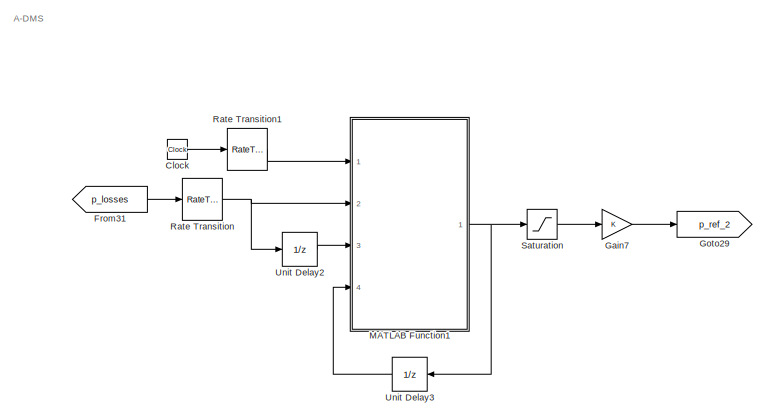
[diagram: root canvas - part 1/7, top right region]
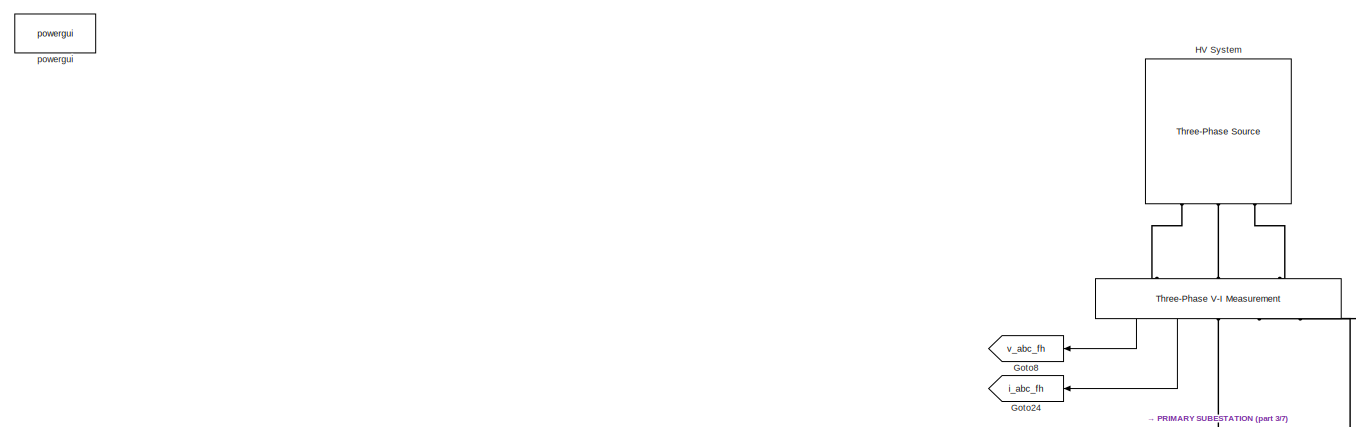
[diagram: root canvas - part 2/7, top center region]
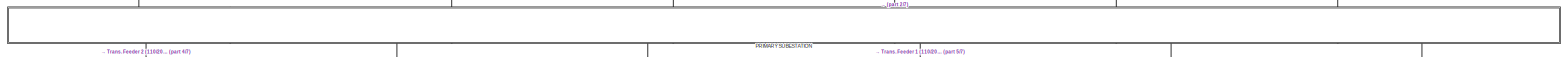
[diagram: root canvas - part 3/7, full width, middle band]
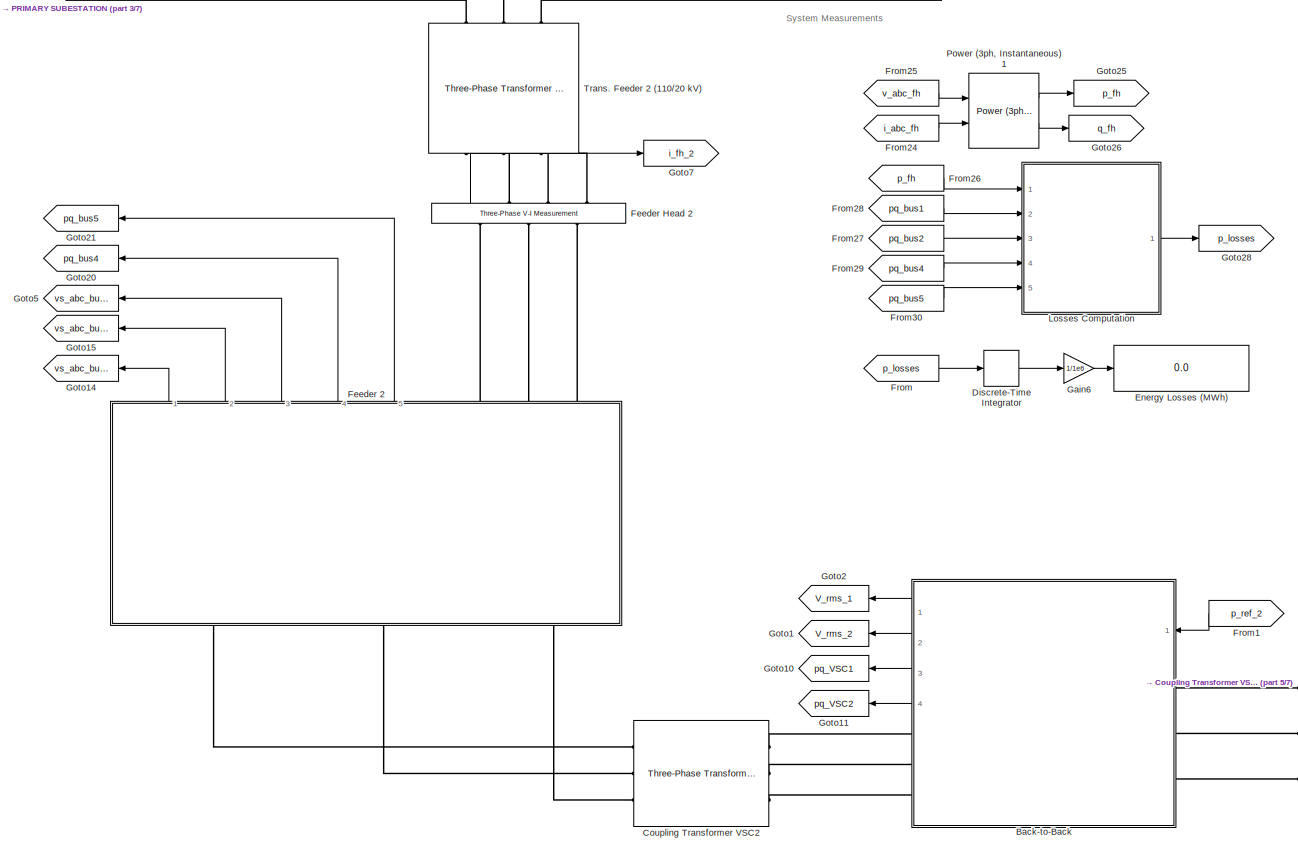
[diagram: root canvas - part 4/7, central region]
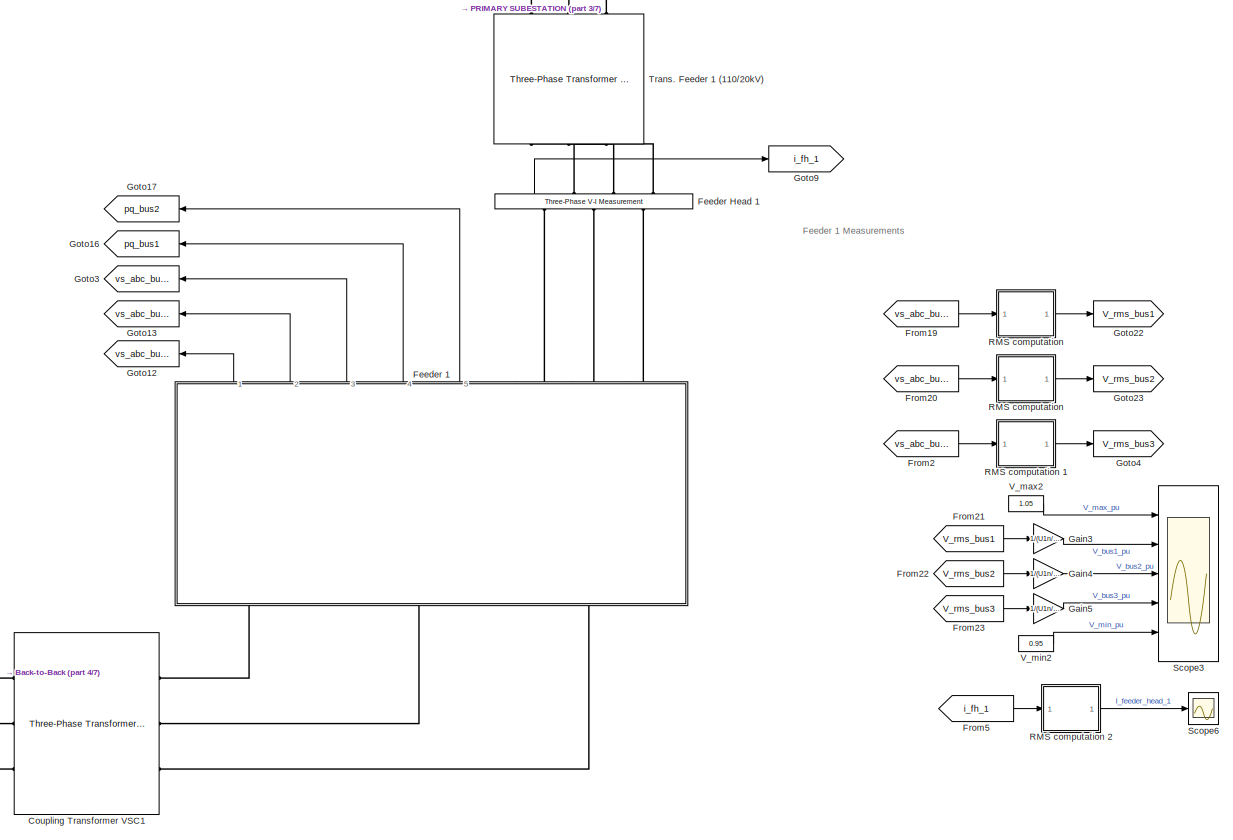
[diagram: root canvas - part 5/7, middle right region]
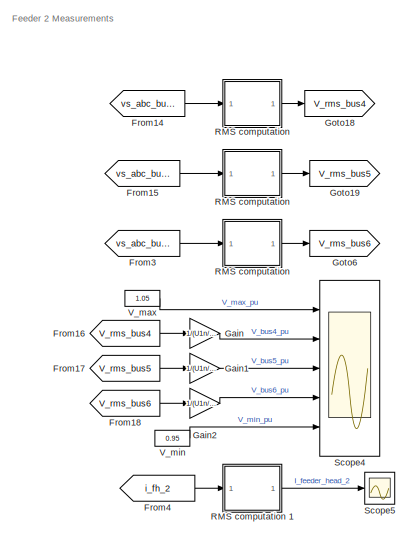
[diagram: root canvas - part 6/7, middle left region]
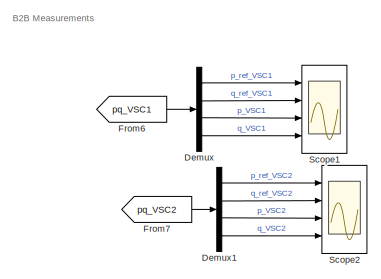
[diagram: root canvas - part 7/7, bottom center region]
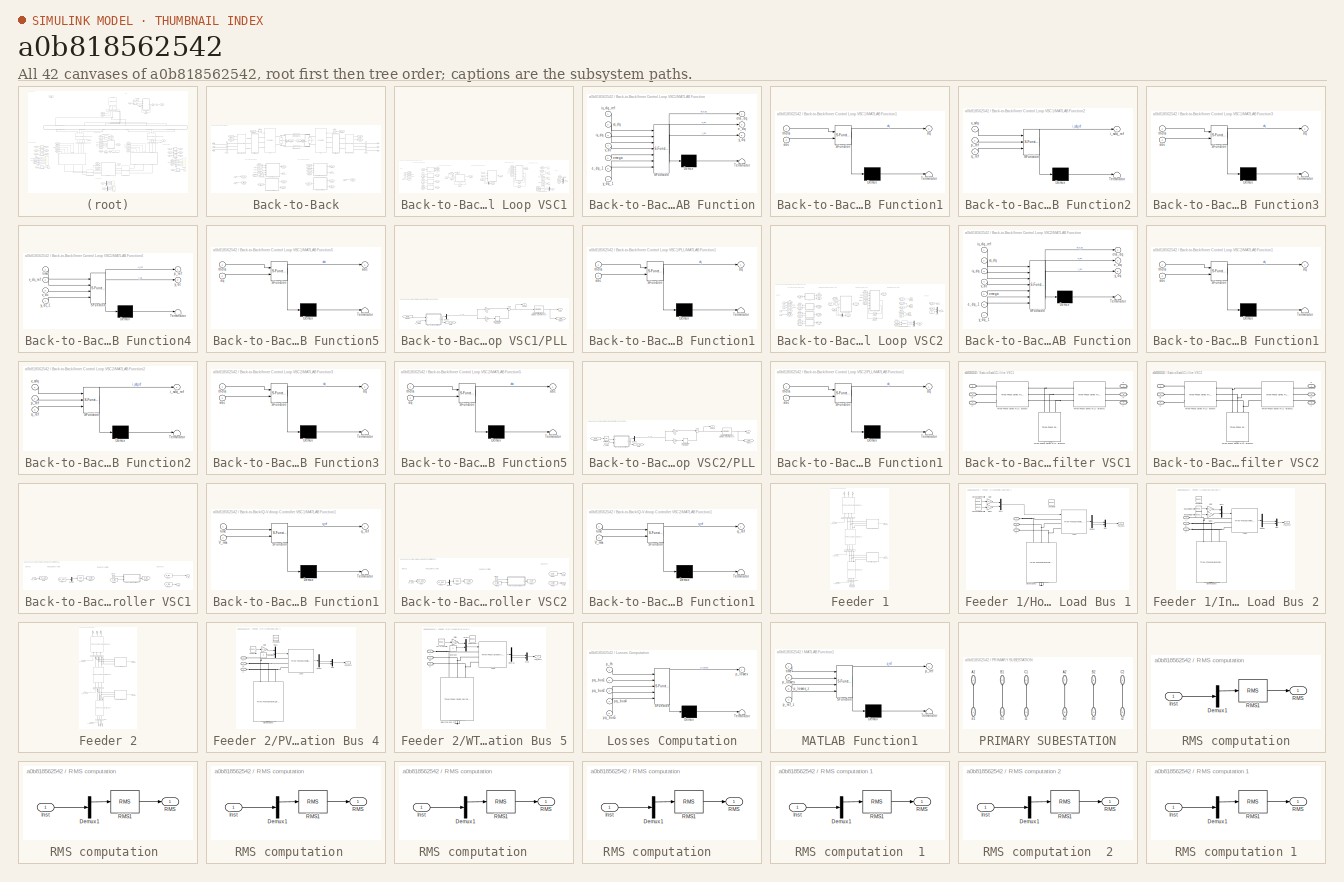
[diagram: thumbnail index - all 42 canvases of the model, root first then tree order]
MODEL slx_a0b818562542
KIND model
CONFIG AbsTol = auto
CONFIG EnableMultiTasking = off
CONFIG FixedStep = Ts_Power
CONFIG InitFcn = %Simulation parameters\nTs_Power = 50e-6;\nTs_Control = 50e-6;\nTs_sec = 0.05;\n\n%MV Grid parameters\nU1n = 20e3;\nf = 50;\nomega = 2*pi*50;\n\n\n%LCL filter parameters\nL_t = 100e-6;\nC = 173e-6;\nL_s = 100e-6;\nR_d = 0.086;\nR_t = omega*L_t/100;\nR_s = omega*L_s/100;\n\n%Capacitance of the DC bus\nCdc = 5.88e-3;\nRdc = 0.00001;\n\n%Coupling transformers parameters\nU2n = 400;\nSn1 = 3e6;\n\n%Primary Subestation parameter...<+1463ch>
CONFIG MaxStep = auto
CONFIG MinStep = auto
CONFIG RelTol = 1e-3
CONFIG SampleTimeConstraint = Unconstrained
CONFIG SolverName = FixedStepDiscrete
CONFIG StartTime = 0.0
CONFIG StopTime = 24
BLOCK [Reference]    REF=spsThreePhaseVIMeasurementLib/Three-Phase
V-I Measurement
  NameLocation = right
  Ports = [0, 2, 0, 0, 0, 3, 3]
  SourceBlock = spsThreePhaseVIMeasurementLib/Three-Phase\nV-I Measurement
  SourceProductBaseCode = PS
  SourceType = Three-Phase VI Measurement
BLOCK [SubSystem] Back-to-Back
  Ports = [1, 4, 0, 0, 0, 3, 3]
  RequestExecContextInheritance = off
BLOCK [PMIOPort] Back-to-Back/A
  Port = 2
  Side = Left
BLOCK [PMIOPort] Back-to-Back/B
  Port = 4
  Side = Left
BLOCK [PMIOPort] Back-to-Back/C
  Port = 6
  Side = Left
BLOCK [Reference] Back-to-Back/Cdc1  REF=spsSeriesRLCBranchLib/Series RLC Branch
  NameLocation = right
  Ports = [0, 0, 0, 0, 0, 1, 1]
  SourceBlock = spsSeriesRLCBranchLib/Series RLC Branch
  SourceProductBaseCode = PS
  SourceType = Series RLC Branch
BLOCK [Reference] Back-to-Back/Cdc2  REF=spsSeriesRLCBranchLib/Series RLC Branch
  NameLocation = left
  Ports = [0, 0, 0, 0, 0, 1, 1]
  SourceBlock = spsSeriesRLCBranchLib/Series RLC Branch
  SourceProductBaseCode = PS
  SourceType = Series RLC Branch
BLOCK [From] Back-to-Back/From
  GotoTag = vs_abc_1
BLOCK [From] Back-to-Back/From1
  GotoTag = is_abc_1
BLOCK [From] Back-to-Back/From10
  GotoTag = V_rms_2
BLOCK [From] Back-to-Back/From11
  GotoTag = V_rms_1
BLOCK [From] Back-to-Back/From12
  GotoTag = q_ref_2
BLOCK [From] Back-to-Back/From13
  GotoTag = q_ref_1
BLOCK [From] Back-to-Back/From2
  GotoTag = vs_abc_2
BLOCK [From] Back-to-Back/From3
  GotoTag = v_dc_1
BLOCK [From] Back-to-Back/From32
  GotoTag = p_ref_2
BLOCK [From] Back-to-Back/From4
  GotoTag = eta_abc_1
BLOCK [From] Back-to-Back/From5
  GotoTag = vs_abc_2
BLOCK [From] Back-to-Back/From6
  GotoTag = is_abc_2
BLOCK [From] Back-to-Back/From7
  GotoTag = v_dc_2
BLOCK [From] Back-to-Back/From8
  GotoTag = eta_abc_2
BLOCK [From] Back-to-Back/From9
  GotoTag = vs_abc_1
BLOCK [Goto] Back-to-Back/Goto
  GotoTag = vs_abc_1
BLOCK [Goto] Back-to-Back/Goto1
  GotoTag = is_abc_1
BLOCK [Goto] Back-to-Back/Goto10
  GotoTag = V_rms_2
BLOCK [Goto] Back-to-Back/Goto11
  GotoTag = q_ref_1
BLOCK [Goto] Back-to-Back/Goto2
  GotoTag = eta_abc_1
BLOCK [Goto] Back-to-Back/Goto27
  GotoTag = q_ref_2
BLOCK [Goto] Back-to-Back/Goto29
  GotoTag = p_ref_2
BLOCK [Goto] Back-to-Back/Goto3
  GotoTag = v_dc_1
BLOCK [Goto] Back-to-Back/Goto4
  GotoTag = v_dc_2
BLOCK [Goto] Back-to-Back/Goto5
  GotoTag = vs_abc_2
BLOCK [Goto] Back-to-Back/Goto6
  GotoTag = is_abc_2
BLOCK [Goto] Back-to-Back/Goto7
  GotoTag = eta_abc_2
BLOCK [Goto] Back-to-Back/Goto9
  GotoTag = V_rms_1
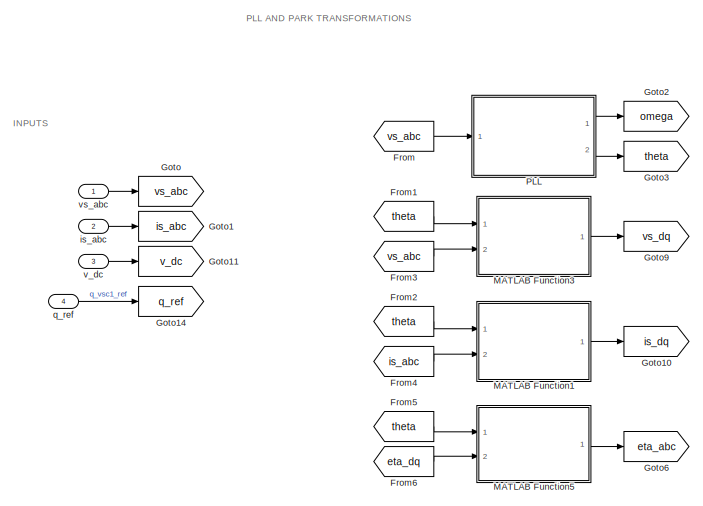
[diagram: Back-to-Back/Inner Control Loop VSC1 - part 1/3, left side, full height]
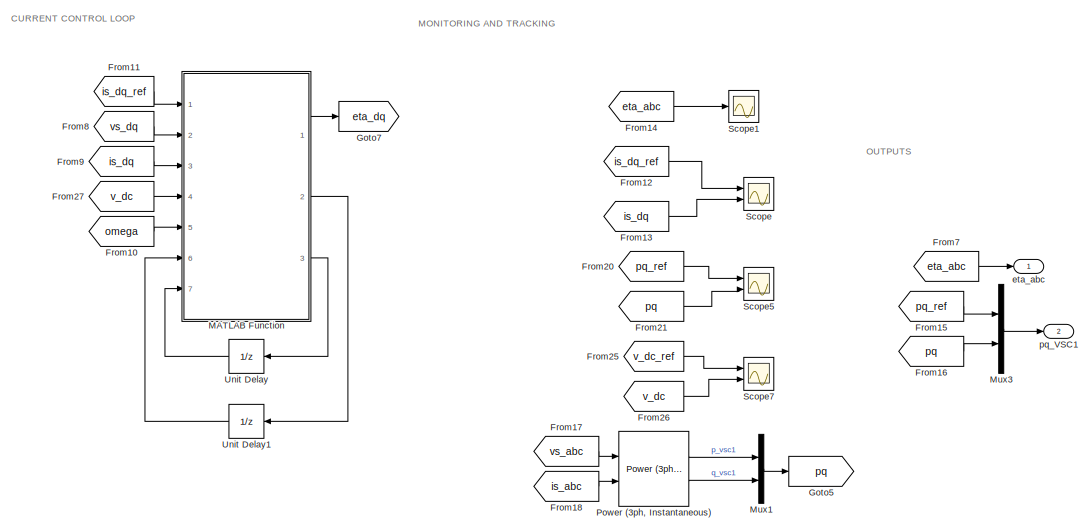
[diagram: Back-to-Back/Inner Control Loop VSC1 - part 2/3, right side, full height]
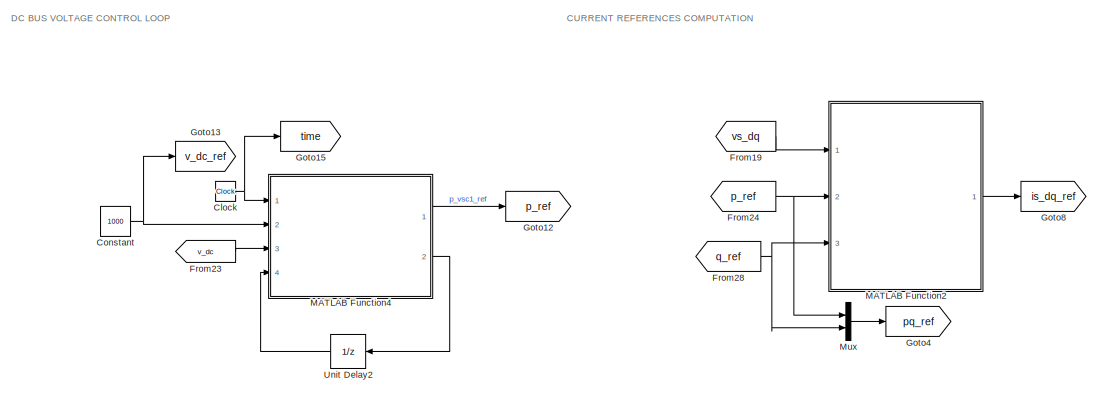
[diagram: Back-to-Back/Inner Control Loop VSC1 - part 3/3, central region]
BLOCK [SubSystem] Back-to-Back/Inner Control Loop VSC1
  Ports = [4, 2]
  RequestExecContextInheritance = off
BLOCK [Clock] Back-to-Back/Inner Control Loop VSC1/Clock
  Decimation = 1
BLOCK [Constant] Back-to-Back/Inner Control Loop VSC1/Constant
  Value = 1000
BLOCK [From] Back-to-Back/Inner Control Loop VSC1/From
  GotoTag = vs_abc
BLOCK [From] Back-to-Back/Inner Control Loop VSC1/From1
  GotoTag = theta
BLOCK [From] Back-to-Back/Inner Control Loop VSC1/From10
  GotoTag = omega
BLOCK [From] Back-to-Back/Inner Control Loop VSC1/From11
  GotoTag = is_dq_ref
BLOCK [From] Back-to-Back/Inner Control Loop VSC1/From12
  GotoTag = is_dq_ref
BLOCK [From] Back-to-Back/Inner Control Loop VSC1/From13
  GotoTag = is_dq
BLOCK [From] Back-to-Back/Inner Control Loop VSC1/From14
  GotoTag = eta_abc
BLOCK [From] Back-to-Back/Inner Control Loop VSC1/From15
  GotoTag = pq_ref
BLOCK [From] Back-to-Back/Inner Control Loop VSC1/From16
  GotoTag = pq
BLOCK [From] Back-to-Back/Inner Control Loop VSC1/From17
  GotoTag = vs_abc
BLOCK [From] Back-to-Back/Inner Control Loop VSC1/From18
  GotoTag = is_abc
BLOCK [From] Back-to-Back/Inner Control Loop VSC1/From19
  GotoTag = vs_dq
BLOCK [From] Back-to-Back/Inner Control Loop VSC1/From2
  GotoTag = theta
BLOCK [From] Back-to-Back/Inner Control Loop VSC1/From20
  GotoTag = pq_ref
BLOCK [From] Back-to-Back/Inner Control Loop VSC1/From21
  GotoTag = pq
BLOCK [From] Back-to-Back/Inner Control Loop VSC1/From23
  GotoTag = v_dc
BLOCK [From] Back-to-Back/Inner Control Loop VSC1/From24
  GotoTag = p_ref
BLOCK [From] Back-to-Back/Inner Control Loop VSC1/From25
  GotoTag = v_dc_ref
BLOCK [From] Back-to-Back/Inner Control Loop VSC1/From26
  GotoTag = v_dc
BLOCK [From] Back-to-Back/Inner Control Loop VSC1/From27
  GotoTag = v_dc
BLOCK [From] Back-to-Back/Inner Control Loop VSC1/From28
  GotoTag = q_ref
BLOCK [From] Back-to-Back/Inner Control Loop VSC1/From3
  GotoTag = vs_abc
BLOCK [From] Back-to-Back/Inner Control Loop VSC1/From4
  GotoTag = is_abc
BLOCK [From] Back-to-Back/Inner Control Loop VSC1/From5
  GotoTag = theta
BLOCK [From] Back-to-Back/Inner Control Loop VSC1/From6
  GotoTag = eta_dq
BLOCK [From] Back-to-Back/Inner Control Loop VSC1/From7
  GotoTag = eta_abc
BLOCK [From] Back-to-Back/Inner Control Loop VSC1/From8
  GotoTag = vs_dq
BLOCK [From] Back-to-Back/Inner Control Loop VSC1/From9
  GotoTag = is_dq
BLOCK [Goto] Back-to-Back/Inner Control Loop VSC1/Goto
  GotoTag = vs_abc
BLOCK [Goto] Back-to-Back/Inner Control Loop VSC1/Goto1
  GotoTag = is_abc
BLOCK [Goto] Back-to-Back/Inner Control Loop VSC1/Goto10
  GotoTag = is_dq
BLOCK [Goto] Back-to-Back/Inner Control Loop VSC1/Goto11
  GotoTag = v_dc
BLOCK [Goto] Back-to-Back/Inner Control Loop VSC1/Goto12
  GotoTag = p_ref
BLOCK [Goto] Back-to-Back/Inner Control Loop VSC1/Goto13
  GotoTag = v_dc_ref
BLOCK [Goto] Back-to-Back/Inner Control Loop VSC1/Goto14
  GotoTag = q_ref
BLOCK [Goto] Back-to-Back/Inner Control Loop VSC1/Goto15
  GotoTag = time
BLOCK [Goto] Back-to-Back/Inner Control Loop VSC1/Goto2
  GotoTag = omega
BLOCK [Goto] Back-to-Back/Inner Control Loop VSC1/Goto3
  GotoTag = theta
BLOCK [Goto] Back-to-Back/Inner Control Loop VSC1/Goto4
  GotoTag = pq_ref
BLOCK [Goto] Back-to-Back/Inner Control Loop VSC1/Goto5
  GotoTag = pq
BLOCK [Goto] Back-to-Back/Inner Control Loop VSC1/Goto6
  GotoTag = eta_abc
BLOCK [Goto] Back-to-Back/Inner Control Loop VSC1/Goto7
  GotoTag = eta_dq
BLOCK [Goto] Back-to-Back/Inner Control Loop VSC1/Goto8
  GotoTag = is_dq_ref
BLOCK [Goto] Back-to-Back/Inner Control Loop VSC1/Goto9
  GotoTag = vs_dq
BLOCK [SubSystem] Back-to-Back/Inner Control Loop VSC1/MATLAB Function
  ErrorFcn = Stateflow.Translate.translate
  PermitHierarchicalResolution = ExplicitOnly
  Ports = [7, 3]
  RequestExecContextInheritance = off
  SFBlockType = MATLAB Function
  TreatAsAtomicUnit = on
BLOCK [Demux] Back-to-Back/Inner Control Loop VSC1/MATLAB Function/ Demux 
  Outputs = 1
  Ports = [1, 1]
BLOCK [S-Function] Back-to-Back/Inner Control Loop VSC1/MATLAB Function/ SFunction 
  EnableBusSupport = on
  FunctionName = sf_sfun
  Parameters = Ki,Kp,L,Ts_Control
  PortCounts = [7 4]
  Ports = [7, 4]
  SFcnIsStateOwnerBlock = off
  SFunctionDeploymentMode = off
  Tag = Stateflow S-Function 3
BLOCK [Terminator] Back-to-Back/Inner Control Loop VSC1/MATLAB Function/ Terminator 
BLOCK [Outport] Back-to-Back/Inner Control Loop VSC1/MATLAB Function/e_dq
  Port = 2
BLOCK [Inport] Back-to-Back/Inner Control Loop VSC1/MATLAB Function/e_dq_1
  Port = 6
BLOCK [Outport] Back-to-Back/Inner Control Loop VSC1/MATLAB Function/eta_dq
BLOCK [Inport] Back-to-Back/Inner Control Loop VSC1/MATLAB Function/is_dq
  Port = 3
BLOCK [Inport] Back-to-Back/Inner Control Loop VSC1/MATLAB Function/is_dq_ref
BLOCK [Inport] Back-to-Back/Inner Control Loop VSC1/MATLAB Function/omega
  Port = 5
BLOCK [Inport] Back-to-Back/Inner Control Loop VSC1/MATLAB Function/v_dc
  Port = 4
BLOCK [Inport] Back-to-Back/Inner Control Loop VSC1/MATLAB Function/vs_dq
  Port = 2
BLOCK [Outport] Back-to-Back/Inner Control Loop VSC1/MATLAB Function/y_dq
  Port = 3
BLOCK [Inport] Back-to-Back/Inner Control Loop VSC1/MATLAB Function/y_dq_1
  Port = 7
BLOCK [SubSystem] Back-to-Back/Inner Control Loop VSC1/MATLAB Function1
  ErrorFcn = Stateflow.Translate.translate
  PermitHierarchicalResolution = ExplicitOnly
  Ports = [2, 1]
  RequestExecContextInheritance = off
  SFBlockType = MATLAB Function
  TreatAsAtomicUnit = on
BLOCK [Demux] Back-to-Back/Inner Control Loop VSC1/MATLAB Function1/ Demux 
  Outputs = 1
  Ports = [1, 1]
BLOCK [S-Function] Back-to-Back/Inner Control Loop VSC1/MATLAB Function1/ SFunction 
  EnableBusSupport = on
  FunctionName = sf_sfun
  PortCounts = [2 2]
  Ports = [2, 2]
  SFcnIsStateOwnerBlock = off
  SFunctionDeploymentMode = off
  Tag = Stateflow S-Function 1
BLOCK [Terminator] Back-to-Back/Inner Control Loop VSC1/MATLAB Function1/ Terminator 
BLOCK [Inport] Back-to-Back/Inner Control Loop VSC1/MATLAB Function1/abc
  Port = 2
BLOCK [Outport] Back-to-Back/Inner Control Loop VSC1/MATLAB Function1/dq
  VectorParamsAs1DForOutWhenUnconnected = off
BLOCK [Inport] Back-to-Back/Inner Control Loop VSC1/MATLAB Function1/theta
BLOCK [SubSystem] Back-to-Back/Inner Control Loop VSC1/MATLAB Function2
  ErrorFcn = Stateflow.Translate.translate
  PermitHierarchicalResolution = ExplicitOnly
  Ports = [3, 1]
  RequestExecContextInheritance = off
  SFBlockType = MATLAB Function
  TreatAsAtomicUnit = on
BLOCK [Demux] Back-to-Back/Inner Control Loop VSC1/MATLAB Function2/ Demux 
  Outputs = 1
  Ports = [1, 1]
BLOCK [S-Function] Back-to-Back/Inner Control Loop VSC1/MATLAB Function2/ SFunction 
  EnableBusSupport = on
  FunctionName = sf_sfun
  PortCounts = [3 2]
  Ports = [3, 2]
  SFcnIsStateOwnerBlock = off
  SFunctionDeploymentMode = off
  Tag = Stateflow S-Function 5
BLOCK [Terminator] Back-to-Back/Inner Control Loop VSC1/MATLAB Function2/ Terminator 
BLOCK [Outport] Back-to-Back/Inner Control Loop VSC1/MATLAB Function2/i_sdq_ref
BLOCK [Inport] Back-to-Back/Inner Control Loop VSC1/MATLAB Function2/p_ref
  Port = 2
BLOCK [Inport] Back-to-Back/Inner Control Loop VSC1/MATLAB Function2/q_ref
  Port = 3
BLOCK [Inport] Back-to-Back/Inner Control Loop VSC1/MATLAB Function2/v_sdq
BLOCK [SubSystem] Back-to-Back/Inner Control Loop VSC1/MATLAB Function3
  ErrorFcn = Stateflow.Translate.translate
  PermitHierarchicalResolution = ExplicitOnly
  Ports = [2, 1]
  RequestExecContextInheritance = off
  SFBlockType = MATLAB Function
  TreatAsAtomicUnit = on
BLOCK [Demux] Back-to-Back/Inner Control Loop VSC1/MATLAB Function3/ Demux 
  Outputs = 1
  Ports = [1, 1]
BLOCK [S-Function] Back-to-Back/Inner Control Loop VSC1/MATLAB Function3/ SFunction 
  EnableBusSupport = on
  FunctionName = sf_sfun
  PortCounts = [2 2]
  Ports = [2, 2]
  SFcnIsStateOwnerBlock = off
  SFunctionDeploymentMode = off
  Tag = Stateflow S-Function 4
BLOCK [Terminator] Back-to-Back/Inner Control Loop VSC1/MATLAB Function3/ Terminator 
BLOCK [Inport] Back-to-Back/Inner Control Loop VSC1/MATLAB Function3/abc
  Port = 2
BLOCK [Outport] Back-to-Back/Inner Control Loop VSC1/MATLAB Function3/dq
  VectorParamsAs1DForOutWhenUnconnected = off
BLOCK [Inport] Back-to-Back/Inner Control Loop VSC1/MATLAB Function3/theta
BLOCK [SubSystem] Back-to-Back/Inner Control Loop VSC1/MATLAB Function4
  ErrorFcn = Stateflow.Translate.translate
  PermitHierarchicalResolution = ExplicitOnly
  Ports = [4, 2]
  RequestExecContextInheritance = off
  SFBlockType = MATLAB Function
  TreatAsAtomicUnit = on
BLOCK [Demux] Back-to-Back/Inner Control Loop VSC1/MATLAB Function4/ Demux 
  Outputs = 1
  Ports = [1, 1]
BLOCK [S-Function] Back-to-Back/Inner Control Loop VSC1/MATLAB Function4/ SFunction 
  EnableBusSupport = on
  FunctionName = sf_sfun
  Parameters = Cdc,Ts_Control,tau_dc
  PortCounts = [4 3]
  Ports = [4, 3]
  SFcnIsStateOwnerBlock = off
  SFunctionDeploymentMode = off
  Tag = Stateflow S-Function 7
BLOCK [Terminator] Back-to-Back/Inner Control Loop VSC1/MATLAB Function4/ Terminator 
BLOCK [Outport] Back-to-Back/Inner Control Loop VSC1/MATLAB Function4/p_ref
BLOCK [Inport] Back-to-Back/Inner Control Loop VSC1/MATLAB Function4/time
BLOCK [Inport] Back-to-Back/Inner Control Loop VSC1/MATLAB Function4/v_dc
  Port = 3
BLOCK [Inport] Back-to-Back/Inner Control Loop VSC1/MATLAB Function4/v_dc_ref
  Port = 2
BLOCK [Outport] Back-to-Back/Inner Control Loop VSC1/MATLAB Function4/y_dc
  Port = 2
BLOCK [Inport] Back-to-Back/Inner Control Loop VSC1/MATLAB Function4/y_dc_1
  Port = 4
BLOCK [SubSystem] Back-to-Back/Inner Control Loop VSC1/MATLAB Function5
  ErrorFcn = Stateflow.Translate.translate
  PermitHierarchicalResolution = ExplicitOnly
  Ports = [2, 1]
  RequestExecContextInheritance = off
  SFBlockType = MATLAB Function
  TreatAsAtomicUnit = on
BLOCK [Demux] Back-to-Back/Inner Control Loop VSC1/MATLAB Function5/ Demux 
  Outputs = 1
  Ports = [1, 1]
BLOCK [S-Function] Back-to-Back/Inner Control Loop VSC1/MATLAB Function5/ SFunction 
  EnableBusSupport = on
  FunctionName = sf_sfun
  PortCounts = [2 2]
  Ports = [2, 2]
  SFcnIsStateOwnerBlock = off
  SFunctionDeploymentMode = off
  Tag = Stateflow S-Function 6
BLOCK [Terminator] Back-to-Back/Inner Control Loop VSC1/MATLAB Function5/ Terminator 
BLOCK [Outport] Back-to-Back/Inner Control Loop VSC1/MATLAB Function5/abc
  VectorParamsAs1DForOutWhenUnconnected = off
BLOCK [Inport] Back-to-Back/Inner Control Loop VSC1/MATLAB Function5/dq
  Port = 2
BLOCK [Inport] Back-to-Back/Inner Control Loop VSC1/MATLAB Function5/theta
BLOCK [Mux] Back-to-Back/Inner Control Loop VSC1/Mux
  DisplayOption = bar
  Inputs = 2
  Ports = [2, 1]
BLOCK [Mux] Back-to-Back/Inner Control Loop VSC1/Mux1
  DisplayOption = bar
  Inputs = 2
  Ports = [2, 1]
BLOCK [Mux] Back-to-Back/Inner Control Loop VSC1/Mux3
  DisplayOption = bar
  Inputs = 2
  Ports = [2, 1]
BLOCK [SubSystem] Back-to-Back/Inner Control Loop VSC1/PLL
  Ports = [1, 2]
  RequestExecContextInheritance = off
BLOCK [Demux] Back-to-Back/Inner Control Loop VSC1/PLL/Demux
  Outputs = 2
  Ports = [1, 2]
BLOCK [DiscreteIntegrator] Back-to-Back/Inner Control Loop VSC1/PLL/Discrete-Time Integrator1
  ICPrevOutput = DiscIntNeverNeededParam
  ICPrevScaledInput = DiscIntNeverNeededParam
  InitialConditionSetting = Auto
  Ports = [1, 1]
  SampleTime = Ts_Control
BLOCK [From] Back-to-Back/Inner Control Loop VSC1/PLL/From24
  GotoTag = theta
BLOCK [Goto] Back-to-Back/Inner Control Loop VSC1/PLL/Goto
  GotoTag = vs_dq
BLOCK [Goto] Back-to-Back/Inner Control Loop VSC1/PLL/Goto10
  GotoTag = theta
BLOCK [Reference] Back-to-Back/Inner Control Loop VSC1/PLL/Integrator with Wrapped State (Discrete or Continuous)  REF=eeGeneralControl/Integrator with
Wrapped State
(Discrete or Continuous)
  Ports = [1, 1]
  SourceBlock = eeGeneralControl/Integrator with\nWrapped State\n(Discrete or Continuous)
  SourceProductBaseCode = PS
  SourceType = Integrator with Wrapped State (Discrete or Continuous)
BLOCK [Gain] Back-to-Back/Inner Control Loop VSC1/PLL/Ki
  Gain = K_i_pll
BLOCK [Gain] Back-to-Back/Inner Control Loop VSC1/PLL/Kp
  Gain = K_p_pll
BLOCK [SubSystem] Back-to-Back/Inner Control Loop VSC1/PLL/MATLAB Function1
  ErrorFcn = Stateflow.Translate.translate
  PermitHierarchicalResolution = ExplicitOnly
  Ports = [2, 1]
  RequestExecContextInheritance = off
  SFBlockType = MATLAB Function
  TreatAsAtomicUnit = on
BLOCK [Demux] Back-to-Back/Inner Control Loop VSC1/PLL/MATLAB Function1/ Demux 
  Outputs = 1
  Ports = [1, 1]
BLOCK [S-Function] Back-to-Back/Inner Control Loop VSC1/PLL/MATLAB Function1/ SFunction 
  EnableBusSupport = on
  FunctionName = sf_sfun
  PortCounts = [2 2]
  Ports = [2, 2]
  SFcnIsStateOwnerBlock = off
  SFunctionDeploymentMode = off
  Tag = Stateflow S-Function 2
BLOCK [Terminator] Back-to-Back/Inner Control Loop VSC1/PLL/MATLAB Function1/ Terminator 
BLOCK [Inport] Back-to-Back/Inner Control Loop VSC1/PLL/MATLAB Function1/abc
  Port = 2
BLOCK [Outport] Back-to-Back/Inner Control Loop VSC1/PLL/MATLAB Function1/dq
  VectorParamsAs1DForOutWhenUnconnected = off
BLOCK [Inport] Back-to-Back/Inner Control Loop VSC1/PLL/MATLAB Function1/theta
BLOCK [Sum] Back-to-Back/Inner Control Loop VSC1/PLL/Sum
  Inputs = |++
  Ports = [2, 1]
BLOCK [Outport] Back-to-Back/Inner Control Loop VSC1/PLL/omega
  VectorParamsAs1DForOutWhenUnconnected = off
BLOCK [Outport] Back-to-Back/Inner Control Loop VSC1/PLL/theta
  Port = 2
  VectorParamsAs1DForOutWhenUnconnected = off
BLOCK [Inport] Back-to-Back/Inner Control Loop VSC1/PLL/v_sabc
BLOCK [Reference] Back-to-Back/Inner Control Loop VSC1/Power (3ph, Instantaneous)  REF=spsPower3phInstantaneousLib/Power
(3ph, Instantaneous)
  Ports = [2, 2]
  SourceBlock = spsPower3phInstantaneousLib/Power\n(3ph, Instantaneous)
  SourceProductBaseCode = PS
  SourceType = Power (3ph, Instantaneous)
BLOCK [Scope] Back-to-Back/Inner Control Loop VSC1/Scope
  Floating = off
  NumInputPorts = 2
  Ports = [2]
  ScopeSpecificationString = Simulink.scopes.TimeScopeBlockCfg('CurrentConfiguration', extmgr.ConfigurationSet(extmgr.Configuration('Core','General UI',true),extmgr.Configuration('Core','Source UI',true),extmgr.Configuration('Sources','WiredSimulink',true),extmgr.Configuration('Visuals','Time Domain',true,'SerializedDisplays',{struct('MinYLimReal','-1746.84977','MaxYLimReal','3107.94816','YLabelReal','','MinYLimMag','  0.0000...<+1541ch>
BLOCK [Scope] Back-to-Back/Inner Control Loop VSC1/Scope1
  Floating = off
  NumInputPorts = 1
  Ports = [1]
  ScopeSpecificationString = Simulink.scopes.TimeScopeBlockCfg('CurrentConfiguration', extmgr.ConfigurationSet(extmgr.Configuration('Core','General UI',true),extmgr.Configuration('Core','Source UI',true),extmgr.Configuration('Sources','WiredSimulink',true,'DataLoggingVariableName','ScopeData1'),extmgr.Configuration('Visuals','Time Domain',true,'SerializedDisplays',{struct('MinYLimReal','-3.44596','MaxYLimReal','4.23436','YLab...<+1496ch>
BLOCK [Scope] Back-to-Back/Inner Control Loop VSC1/Scope5
  Floating = off
  NumInputPorts = 2
  Ports = [2]
  ScopeSpecificationString = Simulink.scopes.TimeScopeBlockCfg('CurrentConfiguration', extmgr.ConfigurationSet(extmgr.Configuration('Core','General UI',true),extmgr.Configuration('Core','Source UI',true),extmgr.Configuration('Sources','WiredSimulink',true,'DataLoggingVariableName','ScopeData1'),extmgr.Configuration('Visuals','Time Domain',true,'SerializedDisplays',{struct('MinYLimReal','-6532752.51838','MaxYLimReal','3985565....<+1550ch>
BLOCK [Scope] Back-to-Back/Inner Control Loop VSC1/Scope7
  Floating = off
  NumInputPorts = 2
  Ports = [2]
  ScopeSpecificationString = Simulink.scopes.TimeScopeBlockCfg('CurrentConfiguration', extmgr.ConfigurationSet(extmgr.Configuration('Core','General UI',true),extmgr.Configuration('Core','Source UI',true),extmgr.Configuration('Sources','WiredSimulink',true,'DataLoggingVariableName','ScopeData3'),extmgr.Configuration('Visuals','Time Domain',true,'SerializedDisplays',{struct('MinYLimReal','328.32517','MaxYLimReal','1121.00541','...<+1503ch>
BLOCK [UnitDelay] Back-to-Back/Inner Control Loop VSC1/Unit Delay
  HasFrameUpgradeWarning = on
  InitialCondition = [0;0]
  SampleTime = Ts_Control
BLOCK [UnitDelay] Back-to-Back/Inner Control Loop VSC1/Unit Delay1
  HasFrameUpgradeWarning = on
  InitialCondition = [0;0]
  SampleTime = Ts_Control
BLOCK [UnitDelay] Back-to-Back/Inner Control Loop VSC1/Unit Delay2
  HasFrameUpgradeWarning = on
  SampleTime = Ts_Control
BLOCK [Outport] Back-to-Back/Inner Control Loop VSC1/eta_abc
BLOCK [Inport] Back-to-Back/Inner Control Loop VSC1/is_abc
  Port = 2
BLOCK [Outport] Back-to-Back/Inner Control Loop VSC1/pq_VSC1
  Port = 2
BLOCK [Inport] Back-to-Back/Inner Control Loop VSC1/q_ref
  Port = 4
BLOCK [Inport] Back-to-Back/Inner Control Loop VSC1/v_dc
  Port = 3
BLOCK [Inport] Back-to-Back/Inner Control Loop VSC1/vs_abc
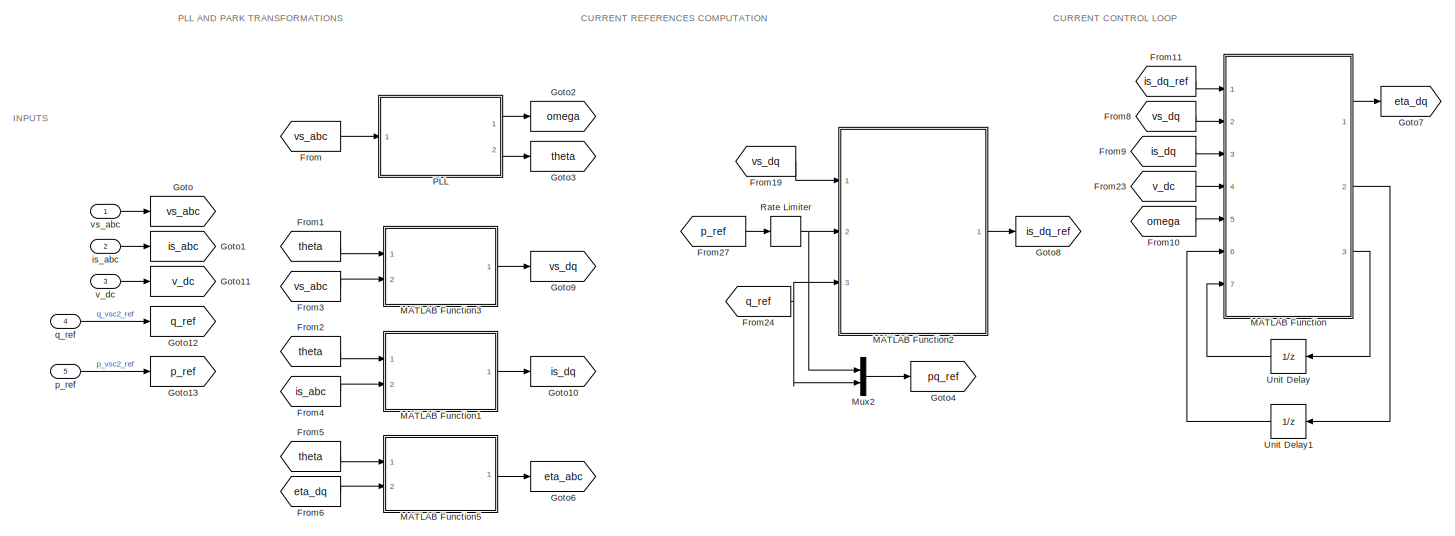
[diagram: Back-to-Back/Inner Control Loop VSC2 - part 1/2, center side, full height]
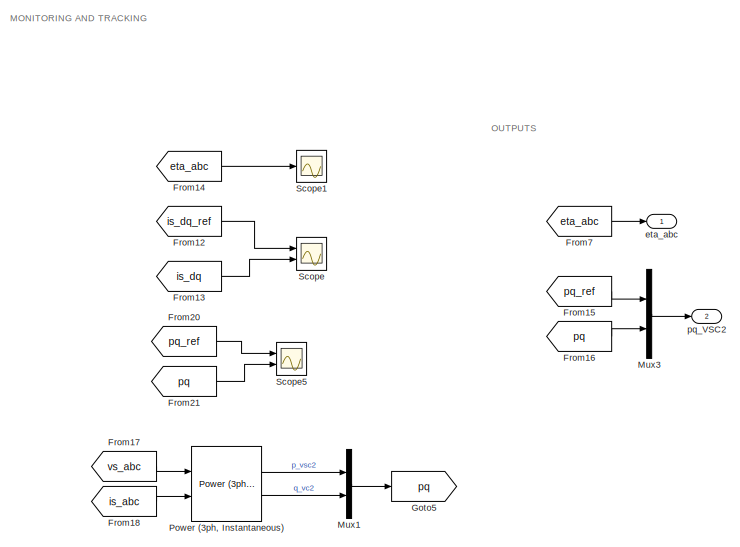
[diagram: Back-to-Back/Inner Control Loop VSC2 - part 2/2, right side, full height]
BLOCK [SubSystem] Back-to-Back/Inner Control Loop VSC2
  Ports = [5, 2]
  RequestExecContextInheritance = off
BLOCK [From] Back-to-Back/Inner Control Loop VSC2/From
  GotoTag = vs_abc
BLOCK [From] Back-to-Back/Inner Control Loop VSC2/From1
  GotoTag = theta
BLOCK [From] Back-to-Back/Inner Control Loop VSC2/From10
  GotoTag = omega
BLOCK [From] Back-to-Back/Inner Control Loop VSC2/From11
  GotoTag = is_dq_ref
BLOCK [From] Back-to-Back/Inner Control Loop VSC2/From12
  GotoTag = is_dq_ref
BLOCK [From] Back-to-Back/Inner Control Loop VSC2/From13
  GotoTag = is_dq
BLOCK [From] Back-to-Back/Inner Control Loop VSC2/From14
  GotoTag = eta_abc
BLOCK [From] Back-to-Back/Inner Control Loop VSC2/From15
  GotoTag = pq_ref
BLOCK [From] Back-to-Back/Inner Control Loop VSC2/From16
  GotoTag = pq
BLOCK [From] Back-to-Back/Inner Control Loop VSC2/From17
  GotoTag = vs_abc
BLOCK [From] Back-to-Back/Inner Control Loop VSC2/From18
  GotoTag = is_abc
BLOCK [From] Back-to-Back/Inner Control Loop VSC2/From19
  GotoTag = vs_dq
BLOCK [From] Back-to-Back/Inner Control Loop VSC2/From2
  GotoTag = theta
BLOCK [From] Back-to-Back/Inner Control Loop VSC2/From20
  GotoTag = pq_ref
BLOCK [From] Back-to-Back/Inner Control Loop VSC2/From21
  GotoTag = pq
BLOCK [From] Back-to-Back/Inner Control Loop VSC2/From23
  GotoTag = v_dc
BLOCK [From] Back-to-Back/Inner Control Loop VSC2/From24
  GotoTag = q_ref
BLOCK [From] Back-to-Back/Inner Control Loop VSC2/From27
  GotoTag = p_ref
BLOCK [From] Back-to-Back/Inner Control Loop VSC2/From3
  GotoTag = vs_abc
BLOCK [From] Back-to-Back/Inner Control Loop VSC2/From4
  GotoTag = is_abc
BLOCK [From] Back-to-Back/Inner Control Loop VSC2/From5
  GotoTag = theta
BLOCK [From] Back-to-Back/Inner Control Loop VSC2/From6
  GotoTag = eta_dq
BLOCK [From] Back-to-Back/Inner Control Loop VSC2/From7
  GotoTag = eta_abc
BLOCK [From] Back-to-Back/Inner Control Loop VSC2/From8
  GotoTag = vs_dq
BLOCK [From] Back-to-Back/Inner Control Loop VSC2/From9
  GotoTag = is_dq
BLOCK [Goto] Back-to-Back/Inner Control Loop VSC2/Goto
  GotoTag = vs_abc
BLOCK [Goto] Back-to-Back/Inner Control Loop VSC2/Goto1
  GotoTag = is_abc
BLOCK [Goto] Back-to-Back/Inner Control Loop VSC2/Goto10
  GotoTag = is_dq
BLOCK [Goto] Back-to-Back/Inner Control Loop VSC2/Goto11
  GotoTag = v_dc
BLOCK [Goto] Back-to-Back/Inner Control Loop VSC2/Goto12
  GotoTag = q_ref
BLOCK [Goto] Back-to-Back/Inner Control Loop VSC2/Goto13
  GotoTag = p_ref
BLOCK [Goto] Back-to-Back/Inner Control Loop VSC2/Goto2
  GotoTag = omega
BLOCK [Goto] Back-to-Back/Inner Control Loop VSC2/Goto3
  GotoTag = theta
BLOCK [Goto] Back-to-Back/Inner Control Loop VSC2/Goto4
  GotoTag = pq_ref
BLOCK [Goto] Back-to-Back/Inner Control Loop VSC2/Goto5
  GotoTag = pq
BLOCK [Goto] Back-to-Back/Inner Control Loop VSC2/Goto6
  GotoTag = eta_abc
BLOCK [Goto] Back-to-Back/Inner Control Loop VSC2/Goto7
  GotoTag = eta_dq
BLOCK [Goto] Back-to-Back/Inner Control Loop VSC2/Goto8
  GotoTag = is_dq_ref
BLOCK [Goto] Back-to-Back/Inner Control Loop VSC2/Goto9
  GotoTag = vs_dq
BLOCK [SubSystem] Back-to-Back/Inner Control Loop VSC2/MATLAB Function
  ErrorFcn = Stateflow.Translate.translate
  PermitHierarchicalResolution = ExplicitOnly
  Ports = [7, 3]
  RequestExecContextInheritance = off
  SFBlockType = MATLAB Function
  TreatAsAtomicUnit = on
BLOCK [Demux] Back-to-Back/Inner Control Loop VSC2/MATLAB Function/ Demux 
  Outputs = 1
  Ports = [1, 1]
BLOCK [S-Function] Back-to-Back/Inner Control Loop VSC2/MATLAB Function/ SFunction 
  EnableBusSupport = on
  FunctionName = sf_sfun
  Parameters = Ki,Kp,L,Ts_Control
  PortCounts = [7 4]
  Ports = [7, 4]
  SFcnIsStateOwnerBlock = off
  SFunctionDeploymentMode = off
  Tag = Stateflow S-Function 8
BLOCK [Terminator] Back-to-Back/Inner Control Loop VSC2/MATLAB Function/ Terminator 
BLOCK [Outport] Back-to-Back/Inner Control Loop VSC2/MATLAB Function/e_dq
  Port = 2
BLOCK [Inport] Back-to-Back/Inner Control Loop VSC2/MATLAB Function/e_dq_1
  Port = 6
BLOCK [Outport] Back-to-Back/Inner Control Loop VSC2/MATLAB Function/eta_dq
BLOCK [Inport] Back-to-Back/Inner Control Loop VSC2/MATLAB Function/is_dq
  Port = 3
BLOCK [Inport] Back-to-Back/Inner Control Loop VSC2/MATLAB Function/is_dq_ref
BLOCK [Inport] Back-to-Back/Inner Control Loop VSC2/MATLAB Function/omega
  Port = 5
BLOCK [Inport] Back-to-Back/Inner Control Loop VSC2/MATLAB Function/v_dc
  Port = 4
BLOCK [Inport] Back-to-Back/Inner Control Loop VSC2/MATLAB Function/vs_dq
  Port = 2
BLOCK [Outport] Back-to-Back/Inner Control Loop VSC2/MATLAB Function/y_dq
  Port = 3
BLOCK [Inport] Back-to-Back/Inner Control Loop VSC2/MATLAB Function/y_dq_1
  Port = 7
BLOCK [SubSystem] Back-to-Back/Inner Control Loop VSC2/MATLAB Function1
  ErrorFcn = Stateflow.Translate.translate
  PermitHierarchicalResolution = ExplicitOnly
  Ports = [2, 1]
  RequestExecContextInheritance = off
  SFBlockType = MATLAB Function
  TreatAsAtomicUnit = on
BLOCK [Demux] Back-to-Back/Inner Control Loop VSC2/MATLAB Function1/ Demux 
  Outputs = 1
  Ports = [1, 1]
BLOCK [S-Function] Back-to-Back/Inner Control Loop VSC2/MATLAB Function1/ SFunction 
  EnableBusSupport = on
  FunctionName = sf_sfun
  PortCounts = [2 2]
  Ports = [2, 2]
  SFcnIsStateOwnerBlock = off
  SFunctionDeploymentMode = off
  Tag = Stateflow S-Function 9
BLOCK [Terminator] Back-to-Back/Inner Control Loop VSC2/MATLAB Function1/ Terminator 
BLOCK [Inport] Back-to-Back/Inner Control Loop VSC2/MATLAB Function1/abc
  Port = 2
BLOCK [Outport] Back-to-Back/Inner Control Loop VSC2/MATLAB Function1/dq
  VectorParamsAs1DForOutWhenUnconnected = off
BLOCK [Inport] Back-to-Back/Inner Control Loop VSC2/MATLAB Function1/theta
BLOCK [SubSystem] Back-to-Back/Inner Control Loop VSC2/MATLAB Function2
  ErrorFcn = Stateflow.Translate.translate
  PermitHierarchicalResolution = ExplicitOnly
  Ports = [3, 1]
  RequestExecContextInheritance = off
  SFBlockType = MATLAB Function
  TreatAsAtomicUnit = on
BLOCK [Demux] Back-to-Back/Inner Control Loop VSC2/MATLAB Function2/ Demux 
  Outputs = 1
  Ports = [1, 1]
BLOCK [S-Function] Back-to-Back/Inner Control Loop VSC2/MATLAB Function2/ SFunction 
  EnableBusSupport = on
  FunctionName = sf_sfun
  PortCounts = [3 2]
  Ports = [3, 2]
  SFcnIsStateOwnerBlock = off
  SFunctionDeploymentMode = off
  Tag = Stateflow S-Function 10
BLOCK [Terminator] Back-to-Back/Inner Control Loop VSC2/MATLAB Function2/ Terminator 
BLOCK [Outport] Back-to-Back/Inner Control Loop VSC2/MATLAB Function2/i_sdq_ref
BLOCK [Inport] Back-to-Back/Inner Control Loop VSC2/MATLAB Function2/p_ref
  Port = 2
BLOCK [Inport] Back-to-Back/Inner Control Loop VSC2/MATLAB Function2/q_ref
  Port = 3
BLOCK [Inport] Back-to-Back/Inner Control Loop VSC2/MATLAB Function2/v_sdq
BLOCK [SubSystem] Back-to-Back/Inner Control Loop VSC2/MATLAB Function3
  ErrorFcn = Stateflow.Translate.translate
  PermitHierarchicalResolution = ExplicitOnly
  Ports = [2, 1]
  RequestExecContextInheritance = off
  SFBlockType = MATLAB Function
  TreatAsAtomicUnit = on
BLOCK [Demux] Back-to-Back/Inner Control Loop VSC2/MATLAB Function3/ Demux 
  Outputs = 1
  Ports = [1, 1]
BLOCK [S-Function] Back-to-Back/Inner Control Loop VSC2/MATLAB Function3/ SFunction 
  EnableBusSupport = on
  FunctionName = sf_sfun
  PortCounts = [2 2]
  Ports = [2, 2]
  SFcnIsStateOwnerBlock = off
  SFunctionDeploymentMode = off
  Tag = Stateflow S-Function 11
BLOCK [Terminator] Back-to-Back/Inner Control Loop VSC2/MATLAB Function3/ Terminator 
BLOCK [Inport] Back-to-Back/Inner Control Loop VSC2/MATLAB Function3/abc
  Port = 2
BLOCK [Outport] Back-to-Back/Inner Control Loop VSC2/MATLAB Function3/dq
  VectorParamsAs1DForOutWhenUnconnected = off
BLOCK [Inport] Back-to-Back/Inner Control Loop VSC2/MATLAB Function3/theta
BLOCK [SubSystem] Back-to-Back/Inner Control Loop VSC2/MATLAB Function5
  ErrorFcn = Stateflow.Translate.translate
  PermitHierarchicalResolution = ExplicitOnly
  Ports = [2, 1]
  RequestExecContextInheritance = off
  SFBlockType = MATLAB Function
  TreatAsAtomicUnit = on
BLOCK [Demux] Back-to-Back/Inner Control Loop VSC2/MATLAB Function5/ Demux 
  Outputs = 1
  Ports = [1, 1]
BLOCK [S-Function] Back-to-Back/Inner Control Loop VSC2/MATLAB Function5/ SFunction 
  EnableBusSupport = on
  FunctionName = sf_sfun
  PortCounts = [2 2]
  Ports = [2, 2]
  SFcnIsStateOwnerBlock = off
  SFunctionDeploymentMode = off
  Tag = Stateflow S-Function 13
BLOCK [Terminator] Back-to-Back/Inner Control Loop VSC2/MATLAB Function5/ Terminator 
BLOCK [Outport] Back-to-Back/Inner Control Loop VSC2/MATLAB Function5/abc
  VectorParamsAs1DForOutWhenUnconnected = off
BLOCK [Inport] Back-to-Back/Inner Control Loop VSC2/MATLAB Function5/dq
  Port = 2
BLOCK [Inport] Back-to-Back/Inner Control Loop VSC2/MATLAB Function5/theta
BLOCK [Mux] Back-to-Back/Inner Control Loop VSC2/Mux1
  DisplayOption = bar
  Inputs = 2
  Ports = [2, 1]
BLOCK [Mux] Back-to-Back/Inner Control Loop VSC2/Mux2
  DisplayOption = bar
  Inputs = 2
  Ports = [2, 1]
BLOCK [Mux] Back-to-Back/Inner Control Loop VSC2/Mux3
  DisplayOption = bar
  Inputs = 2
  Ports = [2, 1]
BLOCK [SubSystem] Back-to-Back/Inner Control Loop VSC2/PLL
  Ports = [1, 2]
  RequestExecContextInheritance = off
BLOCK [Demux] Back-to-Back/Inner Control Loop VSC2/PLL/Demux
  Outputs = 2
  Ports = [1, 2]
BLOCK [DiscreteIntegrator] Back-to-Back/Inner Control Loop VSC2/PLL/Discrete-Time Integrator1
  ICPrevOutput = DiscIntNeverNeededParam
  ICPrevScaledInput = DiscIntNeverNeededParam
  InitialConditionSetting = Auto
  Ports = [1, 1]
  SampleTime = Ts_Control
BLOCK [From] Back-to-Back/Inner Control Loop VSC2/PLL/From24
  GotoTag = theta
BLOCK [Goto] Back-to-Back/Inner Control Loop VSC2/PLL/Goto
  GotoTag = vs_dq
BLOCK [Goto] Back-to-Back/Inner Control Loop VSC2/PLL/Goto10
  GotoTag = theta
BLOCK [Reference] Back-to-Back/Inner Control Loop VSC2/PLL/Integrator with Wrapped State (Discrete or Continuous)  REF=eeGeneralControl/Integrator with
Wrapped State
(Discrete or Continuous)
  Ports = [1, 1]
  SourceBlock = eeGeneralControl/Integrator with\nWrapped State\n(Discrete or Continuous)
  SourceProductBaseCode = PS
  SourceType = Integrator with Wrapped State (Discrete or Continuous)
BLOCK [Gain] Back-to-Back/Inner Control Loop VSC2/PLL/Ki
  Gain = K_i_pll
BLOCK [Gain] Back-to-Back/Inner Control Loop VSC2/PLL/Kp
  Gain = K_p_pll
BLOCK [SubSystem] Back-to-Back/Inner Control Loop VSC2/PLL/MATLAB Function1
  ErrorFcn = Stateflow.Translate.translate
  PermitHierarchicalResolution = ExplicitOnly
  Ports = [2, 1]
  RequestExecContextInheritance = off
  SFBlockType = MATLAB Function
  TreatAsAtomicUnit = on
BLOCK [Demux] Back-to-Back/Inner Control Loop VSC2/PLL/MATLAB Function1/ Demux 
  Outputs = 1
  Ports = [1, 1]
BLOCK [S-Function] Back-to-Back/Inner Control Loop VSC2/PLL/MATLAB Function1/ SFunction 
  EnableBusSupport = on
  FunctionName = sf_sfun
  PortCounts = [2 2]
  Ports = [2, 2]
  SFcnIsStateOwnerBlock = off
  SFunctionDeploymentMode = off
  Tag = Stateflow S-Function 14
BLOCK [Terminator] Back-to-Back/Inner Control Loop VSC2/PLL/MATLAB Function1/ Terminator 
BLOCK [Inport] Back-to-Back/Inner Control Loop VSC2/PLL/MATLAB Function1/abc
  Port = 2
BLOCK [Outport] Back-to-Back/Inner Control Loop VSC2/PLL/MATLAB Function1/dq
  VectorParamsAs1DForOutWhenUnconnected = off
BLOCK [Inport] Back-to-Back/Inner Control Loop VSC2/PLL/MATLAB Function1/theta
BLOCK [Sum] Back-to-Back/Inner Control Loop VSC2/PLL/Sum
  Inputs = |++
  Ports = [2, 1]
BLOCK [UnitDelay] Back-to-Back/Inner Control Loop VSC2/PLL/Unit Delay2
  Commented = through
  HasFrameUpgradeWarning = on
  SampleTime = Ts_Power
BLOCK [Outport] Back-to-Back/Inner Control Loop VSC2/PLL/omega
  VectorParamsAs1DForOutWhenUnconnected = off
BLOCK [Outport] Back-to-Back/Inner Control Loop VSC2/PLL/theta
  Port = 2
  VectorParamsAs1DForOutWhenUnconnected = off
BLOCK [Inport] Back-to-Back/Inner Control Loop VSC2/PLL/v_sabc
BLOCK [Reference] Back-to-Back/Inner Control Loop VSC2/Power (3ph, Instantaneous)  REF=spsPower3phInstantaneousLib/Power
(3ph, Instantaneous)
  Ports = [2, 2]
  SourceBlock = spsPower3phInstantaneousLib/Power\n(3ph, Instantaneous)
  SourceProductBaseCode = PS
  SourceType = Power (3ph, Instantaneous)
BLOCK [RateLimiter] Back-to-Back/Inner Control Loop VSC2/Rate Limiter
  FallingSlewLimit = -500e3
  RisingSlewLimit = 500e3
  SampleTimeMode = inherited
BLOCK [Scope] Back-to-Back/Inner Control Loop VSC2/Scope
  Floating = off
  NumInputPorts = 2
  Ports = [2]
  ScopeSpecificationString = Simulink.scopes.TimeScopeBlockCfg('CurrentConfiguration', extmgr.ConfigurationSet(extmgr.Configuration('Core','General UI',true),extmgr.Configuration('Core','Source UI',true),extmgr.Configuration('Sources','WiredSimulink',true),extmgr.Configuration('Visuals','Time Domain',true,'SerializedDisplays',{struct('MinYLimReal','-25.78859','MaxYLimReal','25.6795','YLabelReal','','MinYLimMag','0.00000','Max...<+1476ch>
BLOCK [Scope] Back-to-Back/Inner Control Loop VSC2/Scope1
  Floating = off
  NumInputPorts = 1
  Ports = [1]
  ScopeSpecificationString = Simulink.scopes.TimeScopeBlockCfg('CurrentConfiguration', extmgr.ConfigurationSet(extmgr.Configuration('Core','General UI',true),extmgr.Configuration('Core','Source UI',true),extmgr.Configuration('Sources','WiredSimulink',true,'DataLoggingVariableName','ScopeData1'),extmgr.Configuration('Visuals','Time Domain',true,'SerializedDisplays',{struct('MinYLimReal','-37.31377','MaxYLimReal','42.16445','YL...<+1502ch>
BLOCK [Scope] Back-to-Back/Inner Control Loop VSC2/Scope5
  Floating = off
  NumInputPorts = 2
  Ports = [2]
  ScopeSpecificationString = Simulink.scopes.TimeScopeBlockCfg('CurrentConfiguration', extmgr.ConfigurationSet(extmgr.Configuration('Core','General UI',true),extmgr.Configuration('Core','Source UI',true),extmgr.Configuration('Sources','WiredSimulink',true,'DataLoggingVariableName','ScopeData1'),extmgr.Configuration('Visuals','Time Domain',true,'SerializedDisplays',{struct('MinYLimReal','-4405914.43389','MaxYLimReal','1221422....<+1555ch>
BLOCK [UnitDelay] Back-to-Back/Inner Control Loop VSC2/Unit Delay
  HasFrameUpgradeWarning = on
  InitialCondition = [0;0]
  SampleTime = Ts_Control
BLOCK [UnitDelay] Back-to-Back/Inner Control Loop VSC2/Unit Delay1
  HasFrameUpgradeWarning = on
  InitialCondition = [0;0]
  SampleTime = Ts_Control
BLOCK [Outport] Back-to-Back/Inner Control Loop VSC2/eta_abc
BLOCK [Inport] Back-to-Back/Inner Control Loop VSC2/is_abc
  Port = 2
BLOCK [Inport] Back-to-Back/Inner Control Loop VSC2/p_ref
  Port = 5
BLOCK [Outport] Back-to-Back/Inner Control Loop VSC2/pq_VSC2
  Port = 2
BLOCK [Inport] Back-to-Back/Inner Control Loop VSC2/q_ref
  Port = 4
BLOCK [Inport] Back-to-Back/Inner Control Loop VSC2/v_dc
  Port = 3
BLOCK [Inport] Back-to-Back/Inner Control Loop VSC2/vs_abc
BLOCK [SubSystem] Back-to-Back/LCL filter VSC1
  Ports = [0, 0, 0, 0, 0, 3, 3]
  RequestExecContextInheritance = off
BLOCK [PMIOPort] Back-to-Back/LCL filter VSC1/A
  Side = Left
BLOCK [PMIOPort] Back-to-Back/LCL filter VSC1/B
  Port = 2
  Side = Left
BLOCK [PMIOPort] Back-to-Back/LCL filter VSC1/C
  Port = 4
  Side = Left
BLOCK [Reference] Back-to-Back/LCL filter VSC1/Three-Phase Series RLC Branch  REF=spsThreePhaseSeriesRLCBranchLib/Three-Phase
Series RLC Branch
  AttributesFormatString = \n
  Ports = [0, 0, 0, 0, 0, 3, 3]
  SourceBlock = spsThreePhaseSeriesRLCBranchLib/Three-Phase\nSeries RLC Branch
  SourceProductBaseCode = PS
  SourceType = Three-Phase Series RLC Branch
BLOCK [Reference] Back-to-Back/LCL filter VSC1/Three-Phase Series RLC Branch1  REF=spsThreePhaseSeriesRLCBranchLib/Three-Phase
Series RLC Branch
  AttributesFormatString = \n
  Ports = [0, 0, 0, 0, 0, 3, 3]
  SourceBlock = spsThreePhaseSeriesRLCBranchLib/Three-Phase\nSeries RLC Branch
  SourceProductBaseCode = PS
  SourceType = Three-Phase Series RLC Branch
BLOCK [Reference] Back-to-Back/LCL filter VSC1/Three-Phase Series RLC Branch2  REF=spsThreePhaseSeriesRLCBranchLib/Three-Phase
Series RLC Branch
  AttributesFormatString = \n
  NameLocation = left
  Ports = [0, 0, 0, 0, 0, 3, 3]
  SourceBlock = spsThreePhaseSeriesRLCBranchLib/Three-Phase\nSeries RLC Branch
  SourceProductBaseCode = PS
  SourceType = Three-Phase Series RLC Branch
BLOCK [PMIOPort] Back-to-Back/LCL filter VSC1/a
  Port = 3
  Side = Right
BLOCK [PMIOPort] Back-to-Back/LCL filter VSC1/b
  Port = 5
  Side = Right
BLOCK [PMIOPort] Back-to-Back/LCL filter VSC1/c
  Port = 6
  Side = Right
BLOCK [SubSystem] Back-to-Back/LCL filter VSC2
  Ports = [0, 0, 0, 0, 0, 3, 3]
  RequestExecContextInheritance = off
BLOCK [PMIOPort] Back-to-Back/LCL filter VSC2/A
  Side = Left
BLOCK [PMIOPort] Back-to-Back/LCL filter VSC2/B
  Port = 2
  Side = Left
BLOCK [PMIOPort] Back-to-Back/LCL filter VSC2/C
  Port = 4
  Side = Left
BLOCK [Reference] Back-to-Back/LCL filter VSC2/Three-Phase Series RLC Branch  REF=spsThreePhaseSeriesRLCBranchLib/Three-Phase
Series RLC Branch
  AttributesFormatString = \n
  Ports = [0, 0, 0, 0, 0, 3, 3]
  SourceBlock = spsThreePhaseSeriesRLCBranchLib/Three-Phase\nSeries RLC Branch
  SourceProductBaseCode = PS
  SourceType = Three-Phase Series RLC Branch
BLOCK [Reference] Back-to-Back/LCL filter VSC2/Three-Phase Series RLC Branch1  REF=spsThreePhaseSeriesRLCBranchLib/Three-Phase
Series RLC Branch
  AttributesFormatString = \n
  Ports = [0, 0, 0, 0, 0, 3, 3]
  SourceBlock = spsThreePhaseSeriesRLCBranchLib/Three-Phase\nSeries RLC Branch
  SourceProductBaseCode = PS
  SourceType = Three-Phase Series RLC Branch
BLOCK [Reference] Back-to-Back/LCL filter VSC2/Three-Phase Series RLC Branch2  REF=spsThreePhaseSeriesRLCBranchLib/Three-Phase
Series RLC Branch
  AttributesFormatString = \n
  NameLocation = left
  Ports = [0, 0, 0, 0, 0, 3, 3]
  SourceBlock = spsThreePhaseSeriesRLCBranchLib/Three-Phase\nSeries RLC Branch
  SourceProductBaseCode = PS
  SourceType = Three-Phase Series RLC Branch
BLOCK [PMIOPort] Back-to-Back/LCL filter VSC2/a
  Port = 3
  Side = Right
BLOCK [PMIOPort] Back-to-Back/LCL filter VSC2/b
  Port = 5
  Side = Right
BLOCK [PMIOPort] Back-to-Back/LCL filter VSC2/c
  Port = 6
  Side = Right
BLOCK [Reference] Back-to-Back/POI VSC1  REF=spsThreePhaseVIMeasurementLib/Three-Phase
V-I Measurement
  Ports = [0, 0, 0, 0, 0, 3, 3]
  SourceBlock = spsThreePhaseVIMeasurementLib/Three-Phase\nV-I Measurement
  SourceProductBaseCode = PS
  SourceType = Three-Phase VI Measurement
BLOCK [Reference] Back-to-Back/POI VSC2  REF=spsThreePhaseVIMeasurementLib/Three-Phase
V-I Measurement
  Ports = [0, 0, 0, 0, 0, 3, 3]
  SourceBlock = spsThreePhaseVIMeasurementLib/Three-Phase\nV-I Measurement
  SourceProductBaseCode = PS
  SourceType = Three-Phase VI Measurement
BLOCK [SubSystem] Back-to-Back/Q-V droop Controller VSC1
  Ports = [1, 2]
  RequestExecContextInheritance = off
BLOCK [Clock] Back-to-Back/Q-V droop Controller VSC1/Clock
  Decimation = 1
BLOCK [Demux] Back-to-Back/Q-V droop Controller VSC1/Demux
  Outputs = 3
  Ports = [1, 3]
BLOCK [From] Back-to-Back/Q-V droop Controller VSC1/From
  GotoTag = vs_abc
BLOCK [From] Back-to-Back/Q-V droop Controller VSC1/From1
  GotoTag = V_rms
BLOCK [From] Back-to-Back/Q-V droop Controller VSC1/From2
  GotoTag = V_rms
BLOCK [From] Back-to-Back/Q-V droop Controller VSC1/From7
  GotoTag = q_ref
BLOCK [Goto] Back-to-Back/Q-V droop Controller VSC1/Goto
  GotoTag = vs_abc
BLOCK [Goto] Back-to-Back/Q-V droop Controller VSC1/Goto1
  GotoTag = V_rms
BLOCK [Goto] Back-to-Back/Q-V droop Controller VSC1/Goto2
  GotoTag = q_ref
BLOCK [SubSystem] Back-to-Back/Q-V droop Controller VSC1/MATLAB Function1
  ErrorFcn = Stateflow.Translate.translate
  PermitHierarchicalResolution = ExplicitOnly
  Ports = [2, 1]
  RequestExecContextInheritance = off
  SFBlockType = MATLAB Function
  TreatAsAtomicUnit = on
BLOCK [Demux] Back-to-Back/Q-V droop Controller VSC1/MATLAB Function1/ Demux 
  Outputs = 1
  Ports = [1, 1]
BLOCK [S-Function] Back-to-Back/Q-V droop Controller VSC1/MATLAB Function1/ SFunction 
  EnableBusSupport = on
  FunctionName = sf_sfun
  Parameters = RQ,Sn1,U2n
  PortCounts = [2 2]
  Ports = [2, 2]
  SFcnIsStateOwnerBlock = off
  SFunctionDeploymentMode = off
  Tag = Stateflow S-Function 12
BLOCK [Terminator] Back-to-Back/Q-V droop Controller VSC1/MATLAB Function1/ Terminator 
BLOCK [Inport] Back-to-Back/Q-V droop Controller VSC1/MATLAB Function1/V_rms
  Port = 2
BLOCK [Outport] Back-to-Back/Q-V droop Controller VSC1/MATLAB Function1/q_ref
BLOCK [Inport] Back-to-Back/Q-V droop Controller VSC1/MATLAB Function1/time
BLOCK [Reference] Back-to-Back/Q-V droop Controller VSC1/RMS  REF=spsRMSLib/RMS
  Ports = [1, 1]
  SourceBlock = spsRMSLib/RMS
  SourceProductBaseCode = PS
  SourceType = RMS
BLOCK [Outport] Back-to-Back/Q-V droop Controller VSC1/V_rms
  Port = 2
BLOCK [Outport] Back-to-Back/Q-V droop Controller VSC1/q_ref
BLOCK [Inport] Back-to-Back/Q-V droop Controller VSC1/vs_abc
BLOCK [SubSystem] Back-to-Back/Q-V droop Controller VSC2
  Ports = [1, 2]
  RequestExecContextInheritance = off
BLOCK [Clock] Back-to-Back/Q-V droop Controller VSC2/Clock
  Decimation = 1
BLOCK [Demux] Back-to-Back/Q-V droop Controller VSC2/Demux
  Outputs = 3
  Ports = [1, 3]
BLOCK [From] Back-to-Back/Q-V droop Controller VSC2/From
  GotoTag = vs_abc
BLOCK [From] Back-to-Back/Q-V droop Controller VSC2/From1
  GotoTag = V_rms
BLOCK [From] Back-to-Back/Q-V droop Controller VSC2/From2
  GotoTag = V_rms
BLOCK [From] Back-to-Back/Q-V droop Controller VSC2/From7
  GotoTag = q_ref
BLOCK [Goto] Back-to-Back/Q-V droop Controller VSC2/Goto
  GotoTag = vs_abc
BLOCK [Goto] Back-to-Back/Q-V droop Controller VSC2/Goto1
  GotoTag = V_rms
BLOCK [Goto] Back-to-Back/Q-V droop Controller VSC2/Goto2
  GotoTag = q_ref
BLOCK [SubSystem] Back-to-Back/Q-V droop Controller VSC2/MATLAB Function1
  ErrorFcn = Stateflow.Translate.translate
  PermitHierarchicalResolution = ExplicitOnly
  Ports = [2, 1]
  RequestExecContextInheritance = off
  SFBlockType = MATLAB Function
  TreatAsAtomicUnit = on
BLOCK [Demux] Back-to-Back/Q-V droop Controller VSC2/MATLAB Function1/ Demux 
  Outputs = 1
  Ports = [1, 1]
BLOCK [S-Function] Back-to-Back/Q-V droop Controller VSC2/MATLAB Function1/ SFunction 
  EnableBusSupport = on
  FunctionName = sf_sfun
  Parameters = RQ,Sn1,U2n
  PortCounts = [2 2]
  Ports = [2, 2]
  SFcnIsStateOwnerBlock = off
  SFunctionDeploymentMode = off
  Tag = Stateflow S-Function 15
BLOCK [Terminator] Back-to-Back/Q-V droop Controller VSC2/MATLAB Function1/ Terminator 
BLOCK [Inport] Back-to-Back/Q-V droop Controller VSC2/MATLAB Function1/V_rms
  Port = 2
BLOCK [Outport] Back-to-Back/Q-V droop Controller VSC2/MATLAB Function1/q_ref
BLOCK [Inport] Back-to-Back/Q-V droop Controller VSC2/MATLAB Function1/time
BLOCK [Reference] Back-to-Back/Q-V droop Controller VSC2/RMS  REF=spsRMSLib/RMS
  Ports = [1, 1]
  SourceBlock = spsRMSLib/RMS
  SourceProductBaseCode = PS
  SourceType = RMS
BLOCK [Outport] Back-to-Back/Q-V droop Controller VSC2/V_rms
  Port = 2
BLOCK [Outport] Back-to-Back/Q-V droop Controller VSC2/q_ref
BLOCK [Inport] Back-to-Back/Q-V droop Controller VSC2/vs_abc
BLOCK [RateTransition] Back-to-Back/Rate Transition2
  InitialCondition = Ts_Control
BLOCK [Reference] Back-to-Back/Series RLC Branch1  REF=spsSeriesRLCBranchLib/Series RLC Branch
  NameLocation = top
  Ports = [0, 0, 0, 0, 0, 1, 1]
  SourceBlock = spsSeriesRLCBranchLib/Series RLC Branch
  SourceProductBaseCode = PS
  SourceType = Series RLC Branch
BLOCK [Reference] Back-to-Back/Series RLC Branch2  REF=spsSeriesRLCBranchLib/Series RLC Branch
  NameLocation = top
  Ports = [0, 0, 0, 0, 0, 1, 1]
  SourceBlock = spsSeriesRLCBranchLib/Series RLC Branch
  SourceProductBaseCode = PS
  SourceType = Series RLC Branch
BLOCK [UnitDelay] Back-to-Back/Unit Delay
  HasFrameUpgradeWarning = on
  SampleTime = Ts_Power
BLOCK [UnitDelay] Back-to-Back/Unit Delay1
  HasFrameUpgradeWarning = on
  SampleTime = Ts_Power
BLOCK [Reference] Back-to-Back/V-I Measurement VSC1  REF=spsThreePhaseVIMeasurementLib/Three-Phase
V-I Measurement
  Ports = [0, 2, 0, 0, 0, 3, 3]
  SourceBlock = spsThreePhaseVIMeasurementLib/Three-Phase\nV-I Measurement
  SourceProductBaseCode = PS
  SourceType = Three-Phase VI Measurement
BLOCK [Reference] Back-to-Back/V-I Measurement VSC2  REF=spsThreePhaseVIMeasurementLib/Three-Phase
V-I Measurement
  Ports = [0, 2, 0, 0, 0, 3, 3]
  SourceBlock = spsThreePhaseVIMeasurementLib/Three-Phase\nV-I Measurement
  SourceProductBaseCode = PS
  SourceType = Three-Phase VI Measurement
BLOCK [Reference] Back-to-Back/VSC1  REF=spsUniversalBridgeLib/Universal Bridge
  Ports = [1, 0, 0, 0, 0, 3, 2]
  SourceBlock = spsUniversalBridgeLib/Universal Bridge
  SourceProductBaseCode = PS
  SourceType = Universal Bridge
BLOCK [Reference] Back-to-Back/VSC2  REF=spsUniversalBridgeLib/Universal Bridge
  Ports = [1, 0, 0, 0, 0, 3, 2]
  SourceBlock = spsUniversalBridgeLib/Universal Bridge
  SourceProductBaseCode = PS
  SourceType = Universal Bridge
BLOCK [Outport] Back-to-Back/V_rms_1
BLOCK [Outport] Back-to-Back/V_rms_2
  Port = 2
BLOCK [Reference] Back-to-Back/Voltage Measurement  REF=spsVoltageMeasurementLib/Voltage Measurement
  Ports = [0, 1, 0, 0, 0, 2]
  SourceBlock = spsVoltageMeasurementLib/Voltage Measurement
  SourceProductBaseCode = PS
  SourceType = Voltage Measurement
  UserDataPersistent = on
BLOCK [Reference] Back-to-Back/Voltage Measurement1  REF=spsVoltageMeasurementLib/Voltage Measurement
  Ports = [0, 1, 0, 0, 0, 2]
  SourceBlock = spsVoltageMeasurementLib/Voltage Measurement
  SourceProductBaseCode = PS
  SourceType = Voltage Measurement
  UserDataPersistent = on
BLOCK [PMIOPort] Back-to-Back/a
  Side = Right
BLOCK [PMIOPort] Back-to-Back/b
  Port = 3
  Side = Right
BLOCK [PMIOPort] Back-to-Back/c
  Port = 5
  Side = Right
BLOCK [Inport] Back-to-Back/p_ref_2
BLOCK [Outport] Back-to-Back/pq_VSC1
  Port = 3
BLOCK [Outport] Back-to-Back/pq_VSC2
  Port = 4
BLOCK [Clock] Clock
  Decimation = 1
BLOCK [Reference] Coupling Transformer VSC1   REF=spsThreePhaseTransformerTwoWindingsLib/Three-Phase
Transformer
(Two Windings)
  Ports = [0, 0, 0, 0, 0, 3, 3]
  SourceBlock = spsThreePhaseTransformerTwoWindingsLib/Three-Phase\nTransformer\n(Two Windings)
  SourceProductBaseCode = PS
  SourceType = Three-Phase Transformer (Two Windings)
BLOCK [Reference] Coupling Transformer VSC2  REF=spsThreePhaseTransformerTwoWindingsLib/Three-Phase
Transformer
(Two Windings)
  Ports = [0, 0, 0, 0, 0, 3, 3]
  SourceBlock = spsThreePhaseTransformerTwoWindingsLib/Three-Phase\nTransformer\n(Two Windings)
  SourceProductBaseCode = PS
  SourceType = Three-Phase Transformer (Two Windings)
BLOCK [Demux] Demux
  Ports = [1, 4]
BLOCK [Demux] Demux1
  Ports = [1, 4]
BLOCK [DiscreteIntegrator] Discrete-Time Integrator
  ICPrevOutput = DiscIntNeverNeededParam
  ICPrevScaledInput = DiscIntNeverNeededParam
  InitialConditionSetting = Auto
  Ports = [1, 1]
  SampleTime = Ts_Control
BLOCK [Display] Energy Losses (MWh)
  Decimation = 1
  Ports = [1]
BLOCK [SubSystem] Feeder 1
  NameLocation = right
  Ports = [0, 5, 0, 0, 0, 3, 3]
  RequestExecContextInheritance = off
BLOCK [PMIOPort] Feeder 1/A
  NameLocation = right
  Side = Left
BLOCK [PMIOPort] Feeder 1/B
  NameLocation = right
  Port = 2
  Side = Left
BLOCK [Reference] Feeder 1/BUS 1  REF=spsThreePhaseVIMeasurementLib/Three-Phase
V-I Measurement
  NameLocation = right
  Ports = [0, 1, 0, 0, 0, 3, 3]
  SourceBlock = spsThreePhaseVIMeasurementLib/Three-Phase\nV-I Measurement
  SourceProductBaseCode = PS
  SourceType = Three-Phase VI Measurement
BLOCK [Reference] Feeder 1/BUS 2  REF=spsThreePhaseVIMeasurementLib/Three-Phase
V-I Measurement
  NameLocation = right
  Ports = [0, 1, 0, 0, 0, 3, 3]
  SourceBlock = spsThreePhaseVIMeasurementLib/Three-Phase\nV-I Measurement
  SourceProductBaseCode = PS
  SourceType = Three-Phase VI Measurement
BLOCK [Reference] Feeder 1/BUS 3  REF=spsThreePhaseVIMeasurementLib/Three-Phase
V-I Measurement
  NameLocation = right
  Ports = [0, 1, 0, 0, 0, 3, 3]
  SourceBlock = spsThreePhaseVIMeasurementLib/Three-Phase\nV-I Measurement
  SourceProductBaseCode = PS
  SourceType = Three-Phase VI Measurement
BLOCK [PMIOPort] Feeder 1/C
  NameLocation = right
  Port = 3
  Side = Left
BLOCK [Reference] Feeder 1/Electrical Line 0-1  REF=spsThreePhaseSeriesRLCBranchLib/Three-Phase
Series RLC Branch
  AttributesFormatString = \n
  NameLocation = right
  Ports = [0, 0, 0, 0, 0, 3, 3]
  SourceBlock = spsThreePhaseSeriesRLCBranchLib/Three-Phase\nSeries RLC Branch
  SourceProductBaseCode = PS
  SourceType = Three-Phase Series RLC Branch
BLOCK [Reference] Feeder 1/Electrical Line 1-2  REF=spsThreePhaseSeriesRLCBranchLib/Three-Phase
Series RLC Branch
  AttributesFormatString = \n
  NameLocation = right
  Ports = [0, 0, 0, 0, 0, 3, 3]
  SourceBlock = spsThreePhaseSeriesRLCBranchLib/Three-Phase\nSeries RLC Branch
  SourceProductBaseCode = PS
  SourceType = Three-Phase Series RLC Branch
BLOCK [Reference] Feeder 1/Electrical Line 2-3  REF=spsThreePhaseSeriesRLCBranchLib/Three-Phase
Series RLC Branch
  AttributesFormatString = \n
  NameLocation = right
  Ports = [0, 0, 0, 0, 0, 3, 3]
  SourceBlock = spsThreePhaseSeriesRLCBranchLib/Three-Phase\nSeries RLC Branch
  SourceProductBaseCode = PS
  SourceType = Three-Phase Series RLC Branch
BLOCK [SubSystem] Feeder 1/Household Load Bus 1
  Ports = [0, 1, 0, 0, 0, 3]
  RequestExecContextInheritance = off
BLOCK [PMIOPort] Feeder 1/Household Load Bus 1/A
  Side = Left
BLOCK [PMIOPort] Feeder 1/Household Load Bus 1/B
  Port = 2
  Side = Left
BLOCK [PMIOPort] Feeder 1/Household Load Bus 1/C
  Port = 3
  Side = Left
BLOCK [Constant] Feeder 1/Household Load Bus 1/Constant2
  Value = [3e6 0]
BLOCK [Demux] Feeder 1/Household Load Bus 1/Demux
  Outputs = 3
  Ports = [1, 3]
BLOCK [Reference] Feeder 1/Household Load Bus 1/Electrical Line 2  REF=spsThreePhaseSeriesRLCBranchLib/Three-Phase
Series RLC Branch
  AttributesFormatString = \n
  NameLocation = left
  Ports = [0, 0, 0, 0, 0, 3, 3]
  SourceBlock = spsThreePhaseSeriesRLCBranchLib/Three-Phase\nSeries RLC Branch
  SourceProductBaseCode = PS
  SourceType = Three-Phase Series RLC Branch
BLOCK [Gain] Feeder 1/Household Load Bus 1/Gain
  Gain = S_h
BLOCK [Gain] Feeder 1/Household Load Bus 1/Gain1
  Gain = S_h
BLOCK [Reference] Feeder 1/Household Load Bus 1/Household P profile  REF=simulink/Sources/Repeating
Sequence
Interpolated
  NameLocation = left
  Ports = [0, 1]
  SourceBlock = simulink/Sources/Repeating\nSequence\nInterpolated
  SourceProductBaseCode = SL
  SourceType = Repeating Sequence Interpolated
BLOCK [Reference] Feeder 1/Household Load Bus 1/Household Q profile  REF=simulink/Sources/Repeating
Sequence
Interpolated
  NameLocation = left
  Ports = [0, 1]
  SourceBlock = simulink/Sources/Repeating\nSequence\nInterpolated
  SourceProductBaseCode = SL
  SourceType = Repeating Sequence Interpolated
BLOCK [Reference] Feeder 1/Household Load Bus 1/Load  REF=spsThreePhaseDynamicLoadLib/Three-Phase
Dynamic Load
  Ports = [1, 1, 0, 0, 0, 3]
  SourceBlock = spsThreePhaseDynamicLoadLib/Three-Phase\nDynamic Load
  SourceProductBaseCode = PS
  SourceType = Three-Phase Dynamic Load
BLOCK [Mux] Feeder 1/Household Load Bus 1/Mux
  DisplayOption = bar
  Inputs = 2
  Ports = [2, 1]
BLOCK [Mux] Feeder 1/Household Load Bus 1/Mux1
  DisplayOption = bar
  Inputs = 2
  Ports = [2, 1]
BLOCK [Outport] Feeder 1/Household Load Bus 1/PQ_bus1
BLOCK [SubSystem] Feeder 1/Industrial Load Bus 2
  Ports = [0, 1, 0, 0, 0, 3]
  RequestExecContextInheritance = off
BLOCK [PMIOPort] Feeder 1/Industrial Load Bus 2/A
  Side = Left
BLOCK [PMIOPort] Feeder 1/Industrial Load Bus 2/B
  Port = 2
  Side = Left
BLOCK [PMIOPort] Feeder 1/Industrial Load Bus 2/C
  Port = 3
  Side = Left
BLOCK [Constant] Feeder 1/Industrial Load Bus 2/Constant2
  Value = [3e6 0]
BLOCK [Demux] Feeder 1/Industrial Load Bus 2/Demux
  Outputs = 3
  Ports = [1, 3]
BLOCK [Reference] Feeder 1/Industrial Load Bus 2/Electrical Line 2  REF=spsThreePhaseSeriesRLCBranchLib/Three-Phase
Series RLC Branch
  AttributesFormatString = \n
  NameLocation = left
  Ports = [0, 0, 0, 0, 0, 3, 3]
  SourceBlock = spsThreePhaseSeriesRLCBranchLib/Three-Phase\nSeries RLC Branch
  SourceProductBaseCode = PS
  SourceType = Three-Phase Series RLC Branch
BLOCK [Gain] Feeder 1/Industrial Load Bus 2/Gain
  Gain = S_i
BLOCK [Gain] Feeder 1/Industrial Load Bus 2/Gain1
  Gain = S_i
BLOCK [Reference] Feeder 1/Industrial Load Bus 2/Industrial P profile  REF=simulink/Sources/Repeating
Sequence
Interpolated
  NameLocation = left
  Ports = [0, 1]
  SourceBlock = simulink/Sources/Repeating\nSequence\nInterpolated
  SourceProductBaseCode = SL
  SourceType = Repeating Sequence Interpolated
BLOCK [Reference] Feeder 1/Industrial Load Bus 2/Industrial Q profile  REF=simulink/Sources/Repeating
Sequence
Interpolated
  NameLocation = left
  Ports = [0, 1]
  SourceBlock = simulink/Sources/Repeating\nSequence\nInterpolated
  SourceProductBaseCode = SL
  SourceType = Repeating Sequence Interpolated
BLOCK [Reference] Feeder 1/Industrial Load Bus 2/Load  REF=spsThreePhaseDynamicLoadLib/Three-Phase
Dynamic Load
  Ports = [1, 1, 0, 0, 0, 3]
  SourceBlock = spsThreePhaseDynamicLoadLib/Three-Phase\nDynamic Load
  SourceProductBaseCode = PS
  SourceType = Three-Phase Dynamic Load
BLOCK [Mux] Feeder 1/Industrial Load Bus 2/Mux
  DisplayOption = bar
  Inputs = 2
  Ports = [2, 1]
BLOCK [Mux] Feeder 1/Industrial Load Bus 2/Mux1
  DisplayOption = bar
  Inputs = 2
  Ports = [2, 1]
BLOCK [Outport] Feeder 1/Industrial Load Bus 2/PQ_bus2
BLOCK [Outport] Feeder 1/PQ_bus1
  Port = 4
BLOCK [Outport] Feeder 1/PQ_bus2
  Port = 5
BLOCK [PMIOPort] Feeder 1/a
  NameLocation = right
  Port = 4
  Side = Right
BLOCK [PMIOPort] Feeder 1/b
  NameLocation = right
  Port = 5
  Side = Right
BLOCK [PMIOPort] Feeder 1/c
  NameLocation = right
  Port = 6
  Side = Right
BLOCK [Outport] Feeder 1/v_abc_bus1
BLOCK [Outport] Feeder 1/v_abc_bus2
  Port = 2
BLOCK [Outport] Feeder 1/v_abc_bus3
  Port = 3
BLOCK [SubSystem] Feeder 2
  NameLocation = right
  Ports = [0, 5, 0, 0, 0, 3, 3]
  RequestExecContextInheritance = off
BLOCK [PMIOPort] Feeder 2/A
  NameLocation = right
  Side = Left
BLOCK [PMIOPort] Feeder 2/B
  NameLocation = right
  Port = 2
  Side = Left
BLOCK [Reference] Feeder 2/BUS 4  REF=spsThreePhaseVIMeasurementLib/Three-Phase
V-I Measurement
  NameLocation = right
  Ports = [0, 1, 0, 0, 0, 3, 3]
  SourceBlock = spsThreePhaseVIMeasurementLib/Three-Phase\nV-I Measurement
  SourceProductBaseCode = PS
  SourceType = Three-Phase VI Measurement
BLOCK [Reference] Feeder 2/BUS 5  REF=spsThreePhaseVIMeasurementLib/Three-Phase
V-I Measurement
  NameLocation = right
  Ports = [0, 1, 0, 0, 0, 3, 3]
  SourceBlock = spsThreePhaseVIMeasurementLib/Three-Phase\nV-I Measurement
  SourceProductBaseCode = PS
  SourceType = Three-Phase VI Measurement
BLOCK [Reference] Feeder 2/BUS 6  REF=spsThreePhaseVIMeasurementLib/Three-Phase
V-I Measurement
  NameLocation = right
  Ports = [0, 1, 0, 0, 0, 3, 3]
  SourceBlock = spsThreePhaseVIMeasurementLib/Three-Phase\nV-I Measurement
  SourceProductBaseCode = PS
  SourceType = Three-Phase VI Measurement
BLOCK [PMIOPort] Feeder 2/C
  NameLocation = right
  Port = 3
  Side = Left
BLOCK [Reference] Feeder 2/Electrical Line 0-4  REF=spsThreePhaseSeriesRLCBranchLib/Three-Phase
Series RLC Branch
  AttributesFormatString = \n
  NameLocation = right
  Ports = [0, 0, 0, 0, 0, 3, 3]
  SourceBlock = spsThreePhaseSeriesRLCBranchLib/Three-Phase\nSeries RLC Branch
  SourceProductBaseCode = PS
  SourceType = Three-Phase Series RLC Branch
BLOCK [Reference] Feeder 2/Electrical Line 4-5  REF=spsThreePhaseSeriesRLCBranchLib/Three-Phase
Series RLC Branch
  AttributesFormatString = \n
  NameLocation = right
  Ports = [0, 0, 0, 0, 0, 3, 3]
  SourceBlock = spsThreePhaseSeriesRLCBranchLib/Three-Phase\nSeries RLC Branch
  SourceProductBaseCode = PS
  SourceType = Three-Phase Series RLC Branch
BLOCK [Reference] Feeder 2/Electrical Line 5-6  REF=spsThreePhaseSeriesRLCBranchLib/Three-Phase
Series RLC Branch
  AttributesFormatString = \n
  NameLocation = right
  Ports = [0, 0, 0, 0, 0, 3, 3]
  SourceBlock = spsThreePhaseSeriesRLCBranchLib/Three-Phase\nSeries RLC Branch
  SourceProductBaseCode = PS
  SourceType = Three-Phase Series RLC Branch
BLOCK [Outport] Feeder 2/PQ_bus4
  Port = 4
BLOCK [Outport] Feeder 2/PQ_bus5
  Port = 5
BLOCK [SubSystem] Feeder 2/PV Generation Bus 4
  Ports = [0, 1, 0, 0, 0, 3]
  RequestExecContextInheritance = off
BLOCK [PMIOPort] Feeder 2/PV Generation Bus 4/A
  Side = Left
BLOCK [PMIOPort] Feeder 2/PV Generation Bus 4/B
  Port = 2
  Side = Left
BLOCK [PMIOPort] Feeder 2/PV Generation Bus 4/C
  Port = 3
  Side = Left
BLOCK [Constant] Feeder 2/PV Generation Bus 4/Constant
  Value = 0
BLOCK [Constant] Feeder 2/PV Generation Bus 4/Constant1
  Value = [-3e6 0]
BLOCK [Demux] Feeder 2/PV Generation Bus 4/Demux
  Outputs = 3
  Ports = [1, 3]
BLOCK [Reference] Feeder 2/PV Generation Bus 4/Electrical Line 2  REF=spsThreePhaseSeriesRLCBranchLib/Three-Phase
Series RLC Branch
  AttributesFormatString = \n
  NameLocation = left
  Ports = [0, 0, 0, 0, 0, 3, 3]
  SourceBlock = spsThreePhaseSeriesRLCBranchLib/Three-Phase\nSeries RLC Branch
  SourceProductBaseCode = PS
  SourceType = Three-Phase Series RLC Branch
BLOCK [Gain] Feeder 2/PV Generation Bus 4/Gain
  Gain = -S_pv
BLOCK [Reference] Feeder 2/PV Generation Bus 4/Load  REF=spsThreePhaseDynamicLoadLib/Three-Phase
Dynamic Load
  Ports = [1, 1, 0, 0, 0, 3]
  SourceBlock = spsThreePhaseDynamicLoadLib/Three-Phase\nDynamic Load
  SourceProductBaseCode = PS
  SourceType = Three-Phase Dynamic Load
BLOCK [Mux] Feeder 2/PV Generation Bus 4/Mux
  DisplayOption = bar
  Inputs = 2
  Ports = [2, 1]
BLOCK [Mux] Feeder 2/PV Generation Bus 4/Mux1
  DisplayOption = bar
  Inputs = 2
  Ports = [2, 1]
BLOCK [Outport] Feeder 2/PV Generation Bus 4/PQ_bus3
BLOCK [Reference] Feeder 2/PV Generation Bus 4/PV P profile  REF=simulink/Sources/Repeating
Sequence
Interpolated
  NameLocation = left
  Ports = [0, 1]
  SourceBlock = simulink/Sources/Repeating\nSequence\nInterpolated
  SourceProductBaseCode = SL
  SourceType = Repeating Sequence Interpolated
BLOCK [SubSystem] Feeder 2/WT Generation Bus 5
  Ports = [0, 1, 0, 0, 0, 3]
  RequestExecContextInheritance = off
BLOCK [PMIOPort] Feeder 2/WT Generation Bus 5/A
  Side = Left
BLOCK [PMIOPort] Feeder 2/WT Generation Bus 5/B
  Port = 2
  Side = Left
BLOCK [PMIOPort] Feeder 2/WT Generation Bus 5/C
  Port = 3
  Side = Left
BLOCK [Constant] Feeder 2/WT Generation Bus 5/Constant
  Value = 0
BLOCK [Constant] Feeder 2/WT Generation Bus 5/Constant1
  Value = [-3e6 0]
BLOCK [Demux] Feeder 2/WT Generation Bus 5/Demux
  Outputs = 3
  Ports = [1, 3]
BLOCK [Reference] Feeder 2/WT Generation Bus 5/Electrical Line 2  REF=spsThreePhaseSeriesRLCBranchLib/Three-Phase
Series RLC Branch
  AttributesFormatString = \n
  NameLocation = left
  Ports = [0, 0, 0, 0, 0, 3, 3]
  SourceBlock = spsThreePhaseSeriesRLCBranchLib/Three-Phase\nSeries RLC Branch
  SourceProductBaseCode = PS
  SourceType = Three-Phase Series RLC Branch
BLOCK [Gain] Feeder 2/WT Generation Bus 5/Gain
  Gain = -S_wt
BLOCK [Reference] Feeder 2/WT Generation Bus 5/Load  REF=spsThreePhaseDynamicLoadLib/Three-Phase
Dynamic Load
  Ports = [1, 1, 0, 0, 0, 3]
  SourceBlock = spsThreePhaseDynamicLoadLib/Three-Phase\nDynamic Load
  SourceProductBaseCode = PS
  SourceType = Three-Phase Dynamic Load
BLOCK [Mux] Feeder 2/WT Generation Bus 5/Mux
  DisplayOption = bar
  Inputs = 2
  Ports = [2, 1]
BLOCK [Mux] Feeder 2/WT Generation Bus 5/Mux1
  DisplayOption = bar
  Inputs = 2
  Ports = [2, 1]
BLOCK [Outport] Feeder 2/WT Generation Bus 5/PQ_bus4
BLOCK [Reference] Feeder 2/WT Generation Bus 5/WT P profile  REF=simulink/Sources/Repeating
Sequence
Interpolated
  NameLocation = left
  Ports = [0, 1]
  SourceBlock = simulink/Sources/Repeating\nSequence\nInterpolated
  SourceProductBaseCode = SL
  SourceType = Repeating Sequence Interpolated
BLOCK [PMIOPort] Feeder 2/a
  NameLocation = right
  Port = 4
  Side = Right
BLOCK [PMIOPort] Feeder 2/b
  NameLocation = right
  Port = 5
  Side = Right
BLOCK [PMIOPort] Feeder 2/c
  NameLocation = right
  Port = 6
  Side = Right
BLOCK [Outport] Feeder 2/v_abc_bus4
BLOCK [Outport] Feeder 2/v_abc_bus5
  Port = 2
BLOCK [Outport] Feeder 2/v_abc_bus6
  Port = 3
BLOCK [Reference] Feeder Head 1  REF=spsThreePhaseVIMeasurementLib/Three-Phase
V-I Measurement
  NameLocation = right
  Ports = [0, 1, 0, 0, 0, 3, 3]
  SourceBlock = spsThreePhaseVIMeasurementLib/Three-Phase\nV-I Measurement
  SourceProductBaseCode = PS
  SourceType = Three-Phase VI Measurement
BLOCK [Reference] Feeder Head 2  REF=spsThreePhaseVIMeasurementLib/Three-Phase
V-I Measurement
  NameLocation = right
  Ports = [0, 1, 0, 0, 0, 3, 3]
  SourceBlock = spsThreePhaseVIMeasurementLib/Three-Phase\nV-I Measurement
  SourceProductBaseCode = PS
  SourceType = Three-Phase VI Measurement
BLOCK [From] From
  GotoTag = p_losses
BLOCK [From] From1
  GotoTag = p_ref_2
BLOCK [From] From14
  GotoTag = vs_abc_bus4
BLOCK [From] From15
  GotoTag = vs_abc_bus5
BLOCK [From] From16
  GotoTag = V_rms_bus4
BLOCK [From] From17
  GotoTag = V_rms_bus5
BLOCK [From] From18
  GotoTag = V_rms_bus6
BLOCK [From] From19
  GotoTag = vs_abc_bus1
BLOCK [From] From2
  GotoTag = vs_abc_bus3
BLOCK [From] From20
  GotoTag = vs_abc_bus2
BLOCK [From] From21
  GotoTag = V_rms_bus1
BLOCK [From] From22
  GotoTag = V_rms_bus2
BLOCK [From] From23
  GotoTag = V_rms_bus3
BLOCK [From] From24
  GotoTag = i_abc_fh
BLOCK [From] From25
  GotoTag = v_abc_fh
BLOCK [From] From26
  GotoTag = p_fh
BLOCK [From] From27
  GotoTag = pq_bus2
BLOCK [From] From28
  GotoTag = pq_bus1
BLOCK [From] From29
  GotoTag = pq_bus4
BLOCK [From] From3
  GotoTag = vs_abc_bus6
BLOCK [From] From30
  GotoTag = pq_bus5
BLOCK [From] From31
  GotoTag = p_losses
BLOCK [From] From4
  GotoTag = i_fh_2
BLOCK [From] From5
  GotoTag = i_fh_1
BLOCK [From] From6
  GotoTag = pq_VSC1
BLOCK [From] From7
  GotoTag = pq_VSC2
BLOCK [Gain] Gain
  Gain = 1/(U1n/sqrt(3))
BLOCK [Gain] Gain1
  Gain = 1/(U1n/sqrt(3))
BLOCK [Gain] Gain2
  Gain = 1/(U1n/sqrt(3))
BLOCK [Gain] Gain3
  Gain = 1/(U1n/sqrt(3))
BLOCK [Gain] Gain4
  Gain = 1/(U1n/sqrt(3))
BLOCK [Gain] Gain5
  Gain = 1/(U1n/sqrt(3))
BLOCK [Gain] Gain6
  Gain = 1/1e6
BLOCK [Gain] Gain7
BLOCK [Goto] Goto1
  GotoTag = V_rms_2
BLOCK [Goto] Goto10
  GotoTag = pq_VSC1
BLOCK [Goto] Goto11
  GotoTag = pq_VSC2
BLOCK [Goto] Goto12
  GotoTag = vs_abc_bus1
BLOCK [Goto] Goto13
  GotoTag = vs_abc_bus2
BLOCK [Goto] Goto14
  GotoTag = vs_abc_bus4
BLOCK [Goto] Goto15
  GotoTag = vs_abc_bus5
BLOCK [Goto] Goto16
  GotoTag = pq_bus1
BLOCK [Goto] Goto17
  GotoTag = pq_bus2
BLOCK [Goto] Goto18
  GotoTag = V_rms_bus4
BLOCK [Goto] Goto19
  GotoTag = V_rms_bus5
BLOCK [Goto] Goto2
  GotoTag = V_rms_1
BLOCK [Goto] Goto20
  GotoTag = pq_bus4
BLOCK [Goto] Goto21
  GotoTag = pq_bus5
BLOCK [Goto] Goto22
  GotoTag = V_rms_bus1
BLOCK [Goto] Goto23
  GotoTag = V_rms_bus2
BLOCK [Goto] Goto24
  GotoTag = i_abc_fh
BLOCK [Goto] Goto25
  GotoTag = p_fh
BLOCK [Goto] Goto26
  GotoTag = q_fh
BLOCK [Goto] Goto28
  GotoTag = p_losses
BLOCK [Goto] Goto29
  GotoTag = p_ref_2
BLOCK [Goto] Goto3
  GotoTag = vs_abc_bus3
BLOCK [Goto] Goto4
  GotoTag = V_rms_bus3
BLOCK [Goto] Goto5
  GotoTag = vs_abc_bus6
BLOCK [Goto] Goto6
  GotoTag = V_rms_bus6
BLOCK [Goto] Goto7
  GotoTag = i_fh_2
BLOCK [Goto] Goto8
  GotoTag = v_abc_fh
BLOCK [Goto] Goto9
  GotoTag = i_fh_1
BLOCK [Reference] HV System  REF=spsThreePhaseSourceLib/Three-Phase Source
  NameLocation = left
  Ports = [0, 0, 0, 0, 0, 0, 3]
  SourceBlock = spsThreePhaseSourceLib/Three-Phase Source
  SourceProductBaseCode = PS
  SourceType = Three-Phase Source
BLOCK [SubSystem] Losses Computation
  ErrorFcn = Stateflow.Translate.translate
  PermitHierarchicalResolution = ExplicitOnly
  Ports = [5, 1]
  RequestExecContextInheritance = off
  SFBlockType = MATLAB Function
  TreatAsAtomicUnit = on
BLOCK [Demux] Losses Computation/ Demux 
  Outputs = 1
  Ports = [1, 1]
BLOCK [S-Function] Losses Computation/ SFunction 
  EnableBusSupport = on
  FunctionName = sf_sfun
  PortCounts = [5 2]
  Ports = [5, 2]
  SFcnIsStateOwnerBlock = off
  SFunctionDeploymentMode = off
  Tag = Stateflow S-Function 16
BLOCK [Terminator] Losses Computation/ Terminator 
BLOCK [Inport] Losses Computation/p_fh
BLOCK [Outport] Losses Computation/p_losses
BLOCK [Inport] Losses Computation/pq_bus1
  Port = 2
BLOCK [Inport] Losses Computation/pq_bus2
  Port = 3
BLOCK [Inport] Losses Computation/pq_bus4
  Port = 4
BLOCK [Inport] Losses Computation/pq_bus5
  Port = 5
BLOCK [SubSystem] MATLAB Function1
  ErrorFcn = Stateflow.Translate.translate
  PermitHierarchicalResolution = ExplicitOnly
  Ports = [4, 1]
  RequestExecContextInheritance = off
  SFBlockType = MATLAB Function
  TreatAsAtomicUnit = on
BLOCK [Demux] MATLAB Function1/ Demux 
  Outputs = 1
  Ports = [1, 1]
BLOCK [S-Function] MATLAB Function1/ SFunction 
  EnableBusSupport = on
  FunctionName = sf_sfun
  PortCounts = [4 2]
  Ports = [4, 2]
  SFcnIsStateOwnerBlock = off
  SFunctionDeploymentMode = off
  Tag = Stateflow S-Function 17
BLOCK [Terminator] MATLAB Function1/ Terminator 
BLOCK [Inport] MATLAB Function1/p_losses
  Port = 2
BLOCK [Inport] MATLAB Function1/p_losses_z
  Port = 3
BLOCK [Outport] MATLAB Function1/p_ref
BLOCK [Inport] MATLAB Function1/p_ref_z
  Port = 4
BLOCK [Inport] MATLAB Function1/time
BLOCK [SubSystem] PRIMARY SUBESTATION
  NameLocation = top
  Ports = [0, 0, 0, 0, 0, 6, 6]
  RequestExecContextInheritance = off
BLOCK [PMIOPort] PRIMARY SUBESTATION/A1
  NameLocation = left
  Port = 4
  Side = Left
BLOCK [PMIOPort] PRIMARY SUBESTATION/A2
  NameLocation = left
  Port = 7
  Side = Left
BLOCK [PMIOPort] PRIMARY SUBESTATION/B1
  NameLocation = left
  Port = 5
  Side = Left
BLOCK [PMIOPort] PRIMARY SUBESTATION/B2
  NameLocation = left
  Port = 8
  Side = Left
BLOCK [PMIOPort] PRIMARY SUBESTATION/C1
  NameLocation = left
  Port = 6
  Side = Left
BLOCK [PMIOPort] PRIMARY SUBESTATION/C2
  NameLocation = left
  Port = 9
  Side = Left
BLOCK [PMIOPort] PRIMARY SUBESTATION/a1
  NameLocation = left
  Side = Right
BLOCK [PMIOPort] PRIMARY SUBESTATION/a2
  NameLocation = left
  Port = 10
  Side = Right
BLOCK [PMIOPort] PRIMARY SUBESTATION/b1
  NameLocation = left
  Port = 2
  Side = Right
BLOCK [PMIOPort] PRIMARY SUBESTATION/b2
  NameLocation = left
  Port = 11
  Side = Right
BLOCK [PMIOPort] PRIMARY SUBESTATION/c1
  NameLocation = left
  Port = 3
  Side = Right
BLOCK [PMIOPort] PRIMARY SUBESTATION/c2
  NameLocation = left
  Port = 12
  Side = Right
BLOCK [Reference] Power (3ph, Instantaneous)1  REF=spsPower3phInstantaneousLib/Power
(3ph, Instantaneous)
  Ports = [2, 2]
  SourceBlock = spsPower3phInstantaneousLib/Power\n(3ph, Instantaneous)
  SourceProductBaseCode = PS
  SourceType = Power (3ph, Instantaneous)
BLOCK [SubSystem] RMS computation
  Ports = [1, 1]
  RequestExecContextInheritance = off
BLOCK [SubSystem] RMS computation 
  Ports = [1, 1]
  RequestExecContextInheritance = off
BLOCK [SubSystem] RMS computation  
  Ports = [1, 1]
  RequestExecContextInheritance = off
BLOCK [SubSystem] RMS computation   
  Ports = [1, 1]
  RequestExecContextInheritance = off
BLOCK [SubSystem] RMS computation    
  Ports = [1, 1]
  RequestExecContextInheritance = off
BLOCK [Demux] RMS computation    /Demux1
  Outputs = 3
  Ports = [1, 3]
BLOCK [Inport] RMS computation    /Inst
BLOCK [Outport] RMS computation    /RMS
BLOCK [Reference] RMS computation    /RMS1  REF=spsRMSLib/RMS
  Ports = [1, 1]
  SourceBlock = spsRMSLib/RMS
  SourceProductBaseCode = PS
  SourceType = RMS
BLOCK [Demux] RMS computation   /Demux1
  Outputs = 3
  Ports = [1, 3]
BLOCK [Inport] RMS computation   /Inst
BLOCK [Outport] RMS computation   /RMS
BLOCK [Reference] RMS computation   /RMS1  REF=spsRMSLib/RMS
  Ports = [1, 1]
  SourceBlock = spsRMSLib/RMS
  SourceProductBaseCode = PS
  SourceType = RMS
BLOCK [Demux] RMS computation  /Demux1
  Outputs = 3
  Ports = [1, 3]
BLOCK [Inport] RMS computation  /Inst
BLOCK [Outport] RMS computation  /RMS
BLOCK [Reference] RMS computation  /RMS1  REF=spsRMSLib/RMS
  Ports = [1, 1]
  SourceBlock = spsRMSLib/RMS
  SourceProductBaseCode = PS
  SourceType = RMS
BLOCK [SubSystem] RMS computation  1
  Ports = [1, 1]
  RequestExecContextInheritance = off
BLOCK [Demux] RMS computation  1/Demux1
  Outputs = 3
  Ports = [1, 3]
BLOCK [Inport] RMS computation  1/Inst
BLOCK [Outport] RMS computation  1/RMS
BLOCK [Reference] RMS computation  1/RMS1  REF=spsRMSLib/RMS
  Ports = [1, 1]
  SourceBlock = spsRMSLib/RMS
  SourceProductBaseCode = PS
  SourceType = RMS
BLOCK [SubSystem] RMS computation  2
  Ports = [1, 1]
  RequestExecContextInheritance = off
BLOCK [Demux] RMS computation  2/Demux1
  Outputs = 3
  Ports = [1, 3]
BLOCK [Inport] RMS computation  2/Inst
BLOCK [Outport] RMS computation  2/RMS
BLOCK [Reference] RMS computation  2/RMS1  REF=spsRMSLib/RMS
  Ports = [1, 1]
  SourceBlock = spsRMSLib/RMS
  SourceProductBaseCode = PS
  SourceType = RMS
BLOCK [Demux] RMS computation /Demux1
  Outputs = 3
  Ports = [1, 3]
BLOCK [Inport] RMS computation /Inst
BLOCK [Outport] RMS computation /RMS
BLOCK [Reference] RMS computation /RMS1  REF=spsRMSLib/RMS
  Ports = [1, 1]
  SourceBlock = spsRMSLib/RMS
  SourceProductBaseCode = PS
  SourceType = RMS
BLOCK [SubSystem] RMS computation 1
  Ports = [1, 1]
  RequestExecContextInheritance = off
BLOCK [Demux] RMS computation 1/Demux1
  Outputs = 3
  Ports = [1, 3]
BLOCK [Inport] RMS computation 1/Inst
BLOCK [Outport] RMS computation 1/RMS
BLOCK [Reference] RMS computation 1/RMS1  REF=spsRMSLib/RMS
  Ports = [1, 1]
  SourceBlock = spsRMSLib/RMS
  SourceProductBaseCode = PS
  SourceType = RMS
BLOCK [Demux] RMS computation/Demux1
  Outputs = 3
  Ports = [1, 3]
BLOCK [Inport] RMS computation/Inst
BLOCK [Outport] RMS computation/RMS
BLOCK [Reference] RMS computation/RMS1  REF=spsRMSLib/RMS
  Ports = [1, 1]
  SourceBlock = spsRMSLib/RMS
  SourceProductBaseCode = PS
  SourceType = RMS
BLOCK [RateTransition] Rate Transition
  InitialCondition = Ts_sec
BLOCK [RateTransition] Rate Transition1
  InitialCondition = Ts_sec
BLOCK [Saturate] Saturation
  LowerLimit = -Sn1
  UpperLimit = Sn1
BLOCK [Scope] Scope1
  Floating = off
  NumInputPorts = 4
  Ports = [4]
  ScopeSpecificationString = Simulink.scopes.TimeScopeBlockCfg('CurrentConfiguration', extmgr.ConfigurationSet(extmgr.Configuration('Core','General UI',true),extmgr.Configuration('Core','Source UI',true),extmgr.Configuration('Sources','WiredSimulink',true,'DataLoggingVariableName','ScopeData5'),extmgr.Configuration('Visuals','Time Domain',true,'SerializedDisplays',{struct('MinYLimReal','-6464474.45468','MaxYLimReal','3371063....<+2038ch>
BLOCK [Scope] Scope2
  Floating = off
  NumInputPorts = 4
  Ports = [4]
  ScopeSpecificationString = Simulink.scopes.TimeScopeBlockCfg('CurrentConfiguration', extmgr.ConfigurationSet(extmgr.Configuration('Core','General UI',true),extmgr.Configuration('Core','Source UI',true),extmgr.Configuration('Sources','WiredSimulink',true,'DataLoggingVariableName','ScopeData6'),extmgr.Configuration('Visuals','Time Domain',true,'SerializedDisplays',{struct('MinYLimReal','-6464474.45468','MaxYLimReal','3371063....<+2038ch>
BLOCK [Scope] Scope3
  Floating = off
  NumInputPorts = 5
  Ports = [5]
  ScopeSpecificationString = Simulink.scopes.TimeScopeBlockCfg('CurrentConfiguration', extmgr.ConfigurationSet(extmgr.Configuration('Core','General UI',true),extmgr.Configuration('Core','Source UI',true),extmgr.Configuration('Sources','WiredSimulink',true,'DataLoggingVariableName','ScopeData3'),extmgr.Configuration('Visuals','Time Domain',true,'SerializedDisplays',{struct('MinYLimReal','0.92','MaxYLimReal','1.06','YLabelReal'...<+2054ch>
BLOCK [Scope] Scope4
  Floating = off
  NumInputPorts = 5
  Ports = [5]
  ScopeSpecificationString = Simulink.scopes.TimeScopeBlockCfg('CurrentConfiguration', extmgr.ConfigurationSet(extmgr.Configuration('Core','General UI',true,'FigureColor',[0 0 0]),extmgr.Configuration('Core','Source UI',true),extmgr.Configuration('Sources','WiredSimulink',true,'DataLoggingVariableName','ScopeData1'),extmgr.Configuration('Visuals','Time Domain',true,'SerializedDisplays',{struct('MinYLimReal','0.94','MaxYLimRea...<+2076ch>
BLOCK [Scope] Scope5
  Floating = off
  NumInputPorts = 1
  Ports = [1]
  ScopeSpecificationString = Simulink.scopes.TimeScopeBlockCfg('CurrentConfiguration', extmgr.ConfigurationSet(extmgr.Configuration('Core','General UI',true),extmgr.Configuration('Core','Source UI',true),extmgr.Configuration('Sources','WiredSimulink',true,'DataLoggingVariableName','ScopeData2'),extmgr.Configuration('Visuals','Time Domain',true,'SerializedDisplays',{struct('MinYLimReal','237.61736','MaxYLimReal','270.89264','Y...<+1587ch>
BLOCK [Scope] Scope6
  Floating = off
  NumInputPorts = 1
  Ports = [1]
  ScopeSpecificationString = Simulink.scopes.TimeScopeBlockCfg('CurrentConfiguration', extmgr.ConfigurationSet(extmgr.Configuration('Core','General UI',true),extmgr.Configuration('Core','Source UI',true),extmgr.Configuration('Sources','WiredSimulink',true,'DataLoggingVariableName','ScopeData4'),extmgr.Configuration('Visuals','Time Domain',true,'SerializedDisplays',{struct('MinYLimReal','25.88686','MaxYLimReal','253.7238','YLa...<+1581ch>
BLOCK [Reference] Trans. Feeder 1 (110//20kV)  REF=spsThreePhaseTransformerTwoWindingsLib/Three-Phase
Transformer
(Two Windings)
  NameLocation = right
  Ports = [0, 0, 0, 0, 0, 3, 3]
  SourceBlock = spsThreePhaseTransformerTwoWindingsLib/Three-Phase\nTransformer\n(Two Windings)
  SourceProductBaseCode = PS
  SourceType = Three-Phase Transformer (Two Windings)
BLOCK [Reference] Trans. Feeder 2 (110//20 kV)  REF=spsThreePhaseTransformerTwoWindingsLib/Three-Phase
Transformer
(Two Windings)
  NameLocation = left
  Ports = [0, 0, 0, 0, 0, 3, 3]
  SourceBlock = spsThreePhaseTransformerTwoWindingsLib/Three-Phase\nTransformer\n(Two Windings)
  SourceProductBaseCode = PS
  SourceType = Three-Phase Transformer (Two Windings)
BLOCK [UnitDelay] Unit Delay2
  HasFrameUpgradeWarning = on
  SampleTime = Ts_sec
BLOCK [UnitDelay] Unit Delay3
  HasFrameUpgradeWarning = on
  SampleTime = Ts_sec
BLOCK [Constant] V_max
  Value = 1.05
BLOCK [Constant] V_max2
  Value = 1.05
BLOCK [Constant] V_min
  Value = 0.95
BLOCK [Constant] V_min2
  Value = 0.95
BLOCK [Reference] powergui  REF=spspowerguiLib/powergui
  Ports = []
  Priority = 1
  SourceBlock = spspowerguiLib/powergui
  SourceProductBaseCode = PS
  SourceType = PSB option menu block
ANNOTATION (root): A-DMS
ANNOTATION (root): B2B Measurements
ANNOTATION (root): Feeder 1 Measurements
ANNOTATION (root): Feeder 2 Measurements
ANNOTATION (root): System Measurements
ANNOTATION Back-to-Back: LOCAL CONTROLLER VSC1
ANNOTATION Back-to-Back: LOCAL CONTROLLER VSC2
ANNOTATION Back-to-Back/Inner Control Loop VSC1: CURRENT CONTROL LOOP
ANNOTATION Back-to-Back/Inner Control Loop VSC1: CURRENT REFERENCES COMPUTATION
ANNOTATION Back-to-Back/Inner Control Loop VSC1: DC BUS VOLTAGE CONTROL LOOP
ANNOTATION Back-to-Back/Inner Control Loop VSC1: INPUTS
ANNOTATION Back-to-Back/Inner Control Loop VSC1: MONITORING AND TRACKING
ANNOTATION Back-to-Back/Inner Control Loop VSC1: OUTPUTS
ANNOTATION Back-to-Back/Inner Control Loop VSC1: PLL AND PARK TRANSFORMATIONS
ANNOTATION Back-to-Back/Inner Control Loop VSC2: CURRENT CONTROL LOOP
ANNOTATION Back-to-Back/Inner Control Loop VSC2: CURRENT REFERENCES COMPUTATION
ANNOTATION Back-to-Back/Inner Control Loop VSC2: INPUTS
ANNOTATION Back-to-Back/Inner Control Loop VSC2: MONITORING AND TRACKING
ANNOTATION Back-to-Back/Inner Control Loop VSC2: OUTPUTS
ANNOTATION Back-to-Back/Inner Control Loop VSC2: PLL AND PARK TRANSFORMATIONS
ANNOTATION Back-to-Back/Q-V droop Controller VSC1: INPUTS
ANNOTATION Back-to-Back/Q-V droop Controller VSC1: OUTPUTS
ANNOTATION Back-to-Back/Q-V droop Controller VSC1: Q-V droop controller
ANNOTATION Back-to-Back/Q-V droop Controller VSC1: RMS COMPUTATION
ANNOTATION Back-to-Back/Q-V droop Controller VSC2: INPUTS
ANNOTATION Back-to-Back/Q-V droop Controller VSC2: OUTPUTS
ANNOTATION Back-to-Back/Q-V droop Controller VSC2: Q-V droop controller
ANNOTATION Back-to-Back/Q-V droop Controller VSC2: RMS COMPUTATION
LINE  :1 -> Goto8:1
LINE  :2 -> Goto24:1
LINE Back-to-Back/From10:1 -> Back-to-Back/V_rms_2:1
LINE Back-to-Back/From11:1 -> Back-to-Back/V_rms_1:1
LINE Back-to-Back/From12:1 -> Back-to-Back/Inner Control Loop VSC2:4
LINE Back-to-Back/From13:1 -> Back-to-Back/Inner Control Loop VSC1:4
LINE Back-to-Back/From1:1 -> Back-to-Back/Inner Control Loop VSC1:2
LINE Back-to-Back/From2:1 -> Back-to-Back/Q-V droop Controller VSC2:1
LINE Back-to-Back/From32:1 -> Back-to-Back/Rate Transition2:1
LINE Back-to-Back/From3:1 -> Back-to-Back/Inner Control Loop VSC1:3
LINE Back-to-Back/From4:1 -> Back-to-Back/Unit Delay:1
LINE Back-to-Back/From5:1 -> Back-to-Back/Inner Control Loop VSC2:1
LINE Back-to-Back/From6:1 -> Back-to-Back/Inner Control Loop VSC2:2
LINE Back-to-Back/From7:1 -> Back-to-Back/Inner Control Loop VSC2:3
LINE Back-to-Back/From8:1 -> Back-to-Back/Unit Delay1:1
LINE Back-to-Back/From9:1 -> Back-to-Back/Q-V droop Controller VSC1:1
LINE Back-to-Back/From:1 -> Back-to-Back/Inner Control Loop VSC1:1
NET Back-to-Back/Inner Control Loop VSC1/Clock:1 -> Back-to-Back/Inner Control Loop VSC1/Goto15:1, Back-to-Back/Inner Control Loop VSC1/MATLAB Function4:1
NET Back-to-Back/Inner Control Loop VSC1/Constant:1 -> Back-to-Back/Inner Control Loop VSC1/Goto13:1, Back-to-Back/Inner Control Loop VSC1/MATLAB Function4:2
LINE Back-to-Back/Inner Control Loop VSC1/From10:1 -> Back-to-Back/Inner Control Loop VSC1/MATLAB Function:5
LINE Back-to-Back/Inner Control Loop VSC1/From11:1 -> Back-to-Back/Inner Control Loop VSC1/MATLAB Function:1
LINE Back-to-Back/Inner Control Loop VSC1/From12:1 -> Back-to-Back/Inner Control Loop VSC1/Scope:1
LINE Back-to-Back/Inner Control Loop VSC1/From13:1 -> Back-to-Back/Inner Control Loop VSC1/Scope:2
LINE Back-to-Back/Inner Control Loop VSC1/From14:1 -> Back-to-Back/Inner Control Loop VSC1/Scope1:1
LINE Back-to-Back/Inner Control Loop VSC1/From15:1 -> Back-to-Back/Inner Control Loop VSC1/Mux3:1
LINE Back-to-Back/Inner Control Loop VSC1/From16:1 -> Back-to-Back/Inner Control Loop VSC1/Mux3:2
LINE Back-to-Back/Inner Control Loop VSC1/From17:1 -> Back-to-Back/Inner Control Loop VSC1/Power (3ph, Instantaneous):1
LINE Back-to-Back/Inner Control Loop VSC1/From18:1 -> Back-to-Back/Inner Control Loop VSC1/Power (3ph, Instantaneous):2
LINE Back-to-Back/Inner Control Loop VSC1/From19:1 -> Back-to-Back/Inner Control Loop VSC1/MATLAB Function2:1
LINE Back-to-Back/Inner Control Loop VSC1/From1:1 -> Back-to-Back/Inner Control Loop VSC1/MATLAB Function3:1
LINE Back-to-Back/Inner Control Loop VSC1/From20:1 -> Back-to-Back/Inner Control Loop VSC1/Scope5:1
LINE Back-to-Back/Inner Control Loop VSC1/From21:1 -> Back-to-Back/Inner Control Loop VSC1/Scope5:2
LINE Back-to-Back/Inner Control Loop VSC1/From23:1 -> Back-to-Back/Inner Control Loop VSC1/MATLAB Function4:3
NET Back-to-Back/Inner Control Loop VSC1/From24:1 -> Back-to-Back/Inner Control Loop VSC1/MATLAB Function2:2, Back-to-Back/Inner Control Loop VSC1/Mux:1
LINE Back-to-Back/Inner Control Loop VSC1/From25:1 -> Back-to-Back/Inner Control Loop VSC1/Scope7:1
LINE Back-to-Back/Inner Control Loop VSC1/From26:1 -> Back-to-Back/Inner Control Loop VSC1/Scope7:2
LINE Back-to-Back/Inner Control Loop VSC1/From27:1 -> Back-to-Back/Inner Control Loop VSC1/MATLAB Function:4
NET Back-to-Back/Inner Control Loop VSC1/From28:1 -> Back-to-Back/Inner Control Loop VSC1/MATLAB Function2:3, Back-to-Back/Inner Control Loop VSC1/Mux:2
LINE Back-to-Back/Inner Control Loop VSC1/From2:1 -> Back-to-Back/Inner Control Loop VSC1/MATLAB Function1:1
LINE Back-to-Back/Inner Control Loop VSC1/From3:1 -> Back-to-Back/Inner Control Loop VSC1/MATLAB Function3:2
LINE Back-to-Back/Inner Control Loop VSC1/From4:1 -> Back-to-Back/Inner Control Loop VSC1/MATLAB Function1:2
LINE Back-to-Back/Inner Control Loop VSC1/From5:1 -> Back-to-Back/Inner Control Loop VSC1/MATLAB Function5:1
LINE Back-to-Back/Inner Control Loop VSC1/From6:1 -> Back-to-Back/Inner Control Loop VSC1/MATLAB Function5:2
LINE Back-to-Back/Inner Control Loop VSC1/From7:1 -> Back-to-Back/Inner Control Loop VSC1/eta_abc:1
LINE Back-to-Back/Inner Control Loop VSC1/From8:1 -> Back-to-Back/Inner Control Loop VSC1/MATLAB Function:2
LINE Back-to-Back/Inner Control Loop VSC1/From9:1 -> Back-to-Back/Inner Control Loop VSC1/MATLAB Function:3
LINE Back-to-Back/Inner Control Loop VSC1/From:1 -> Back-to-Back/Inner Control Loop VSC1/PLL:1
LINE Back-to-Back/Inner Control Loop VSC1/MATLAB Function1:1 -> Back-to-Back/Inner Control Loop VSC1/Goto10:1
LINE Back-to-Back/Inner Control Loop VSC1/MATLAB Function2:1 -> Back-to-Back/Inner Control Loop VSC1/Goto8:1
LINE Back-to-Back/Inner Control Loop VSC1/MATLAB Function3:1 -> Back-to-Back/Inner Control Loop VSC1/Goto9:1
LINE Back-to-Back/Inner Control Loop VSC1/MATLAB Function4:1 -> Back-to-Back/Inner Control Loop VSC1/Goto12:1
LINE Back-to-Back/Inner Control Loop VSC1/MATLAB Function4:2 -> Back-to-Back/Inner Control Loop VSC1/Unit Delay2:1
LINE Back-to-Back/Inner Control Loop VSC1/MATLAB Function5:1 -> Back-to-Back/Inner Control Loop VSC1/Goto6:1
LINE Back-to-Back/Inner Control Loop VSC1/MATLAB Function:1 -> Back-to-Back/Inner Control Loop VSC1/Goto7:1
LINE Back-to-Back/Inner Control Loop VSC1/MATLAB Function:2 -> Back-to-Back/Inner Control Loop VSC1/Unit Delay1:1
LINE Back-to-Back/Inner Control Loop VSC1/MATLAB Function:3 -> Back-to-Back/Inner Control Loop VSC1/Unit Delay:1
LINE Back-to-Back/Inner Control Loop VSC1/Mux1:1 -> Back-to-Back/Inner Control Loop VSC1/Goto5:1
LINE Back-to-Back/Inner Control Loop VSC1/Mux3:1 -> Back-to-Back/Inner Control Loop VSC1/pq_VSC1:1
LINE Back-to-Back/Inner Control Loop VSC1/Mux:1 -> Back-to-Back/Inner Control Loop VSC1/Goto4:1
NET Back-to-Back/Inner Control Loop VSC1/PLL/Demux:1 -> Back-to-Back/Inner Control Loop VSC1/PLL/Ki:1, Back-to-Back/Inner Control Loop VSC1/PLL/Kp:1
LINE Back-to-Back/Inner Control Loop VSC1/PLL/Discrete-Time Integrator1:1 -> Back-to-Back/Inner Control Loop VSC1/PLL/Sum:2
LINE Back-to-Back/Inner Control Loop VSC1/PLL/From24:1 -> Back-to-Back/Inner Control Loop VSC1/PLL/MATLAB Function1:1
NET Back-to-Back/Inner Control Loop VSC1/PLL/Integrator with Wrapped State (Discrete or Continuous):1 -> Back-to-Back/Inner Control Loop VSC1/PLL/Goto10:1, Back-to-Back/Inner Control Loop VSC1/PLL/theta:1
LINE Back-to-Back/Inner Control Loop VSC1/PLL/Ki:1 -> Back-to-Back/Inner Control Loop VSC1/PLL/Discrete-Time Integrator1:1
LINE Back-to-Back/Inner Control Loop VSC1/PLL/Kp:1 -> Back-to-Back/Inner Control Loop VSC1/PLL/Sum:1
NET Back-to-Back/Inner Control Loop VSC1/PLL/MATLAB Function1:1 -> Back-to-Back/Inner Control Loop VSC1/PLL/Demux:1, Back-to-Back/Inner Control Loop VSC1/PLL/Goto:1
NET Back-to-Back/Inner Control Loop VSC1/PLL/Sum:1 -> Back-to-Back/Inner Control Loop VSC1/PLL/Integrator with Wrapped State (Discrete or Continuous):1, Back-to-Back/Inner Control Loop VSC1/PLL/omega:1
LINE Back-to-Back/Inner Control Loop VSC1/PLL/v_sabc:1 -> Back-to-Back/Inner Control Loop VSC1/PLL/MATLAB Function1:2
LINE Back-to-Back/Inner Control Loop VSC1/PLL:1 -> Back-to-Back/Inner Control Loop VSC1/Goto2:1
LINE Back-to-Back/Inner Control Loop VSC1/PLL:2 -> Back-to-Back/Inner Control Loop VSC1/Goto3:1
LINE Back-to-Back/Inner Control Loop VSC1/Power (3ph, Instantaneous):1 -> Back-to-Back/Inner Control Loop VSC1/Mux1:1
LINE Back-to-Back/Inner Control Loop VSC1/Power (3ph, Instantaneous):2 -> Back-to-Back/Inner Control Loop VSC1/Mux1:2
LINE Back-to-Back/Inner Control Loop VSC1/Unit Delay1:1 -> Back-to-Back/Inner Control Loop VSC1/MATLAB Function:6
LINE Back-to-Back/Inner Control Loop VSC1/Unit Delay2:1 -> Back-to-Back/Inner Control Loop VSC1/MATLAB Function4:4
LINE Back-to-Back/Inner Control Loop VSC1/Unit Delay:1 -> Back-to-Back/Inner Control Loop VSC1/MATLAB Function:7
LINE Back-to-Back/Inner Control Loop VSC1/is_abc:1 -> Back-to-Back/Inner Control Loop VSC1/Goto1:1
LINE Back-to-Back/Inner Control Loop VSC1/q_ref:1 -> Back-to-Back/Inner Control Loop VSC1/Goto14:1
LINE Back-to-Back/Inner Control Loop VSC1/v_dc:1 -> Back-to-Back/Inner Control Loop VSC1/Goto11:1
LINE Back-to-Back/Inner Control Loop VSC1/vs_abc:1 -> Back-to-Back/Inner Control Loop VSC1/Goto:1
LINE Back-to-Back/Inner Control Loop VSC1:1 -> Back-to-Back/Goto2:1
LINE Back-to-Back/Inner Control Loop VSC1:2 -> Back-to-Back/pq_VSC1:1
LINE Back-to-Back/Inner Control Loop VSC2/From10:1 -> Back-to-Back/Inner Control Loop VSC2/MATLAB Function:5
LINE Back-to-Back/Inner Control Loop VSC2/From11:1 -> Back-to-Back/Inner Control Loop VSC2/MATLAB Function:1
LINE Back-to-Back/Inner Control Loop VSC2/From12:1 -> Back-to-Back/Inner Control Loop VSC2/Scope:1
LINE Back-to-Back/Inner Control Loop VSC2/From13:1 -> Back-to-Back/Inner Control Loop VSC2/Scope:2
LINE Back-to-Back/Inner Control Loop VSC2/From14:1 -> Back-to-Back/Inner Control Loop VSC2/Scope1:1
LINE Back-to-Back/Inner Control Loop VSC2/From15:1 -> Back-to-Back/Inner Control Loop VSC2/Mux3:1
LINE Back-to-Back/Inner Control Loop VSC2/From16:1 -> Back-to-Back/Inner Control Loop VSC2/Mux3:2
LINE Back-to-Back/Inner Control Loop VSC2/From17:1 -> Back-to-Back/Inner Control Loop VSC2/Power (3ph, Instantaneous):1
LINE Back-to-Back/Inner Control Loop VSC2/From18:1 -> Back-to-Back/Inner Control Loop VSC2/Power (3ph, Instantaneous):2
LINE Back-to-Back/Inner Control Loop VSC2/From19:1 -> Back-to-Back/Inner Control Loop VSC2/MATLAB Function2:1
LINE Back-to-Back/Inner Control Loop VSC2/From1:1 -> Back-to-Back/Inner Control Loop VSC2/MATLAB Function3:1
LINE Back-to-Back/Inner Control Loop VSC2/From20:1 -> Back-to-Back/Inner Control Loop VSC2/Scope5:1
LINE Back-to-Back/Inner Control Loop VSC2/From21:1 -> Back-to-Back/Inner Control Loop VSC2/Scope5:2
LINE Back-to-Back/Inner Control Loop VSC2/From23:1 -> Back-to-Back/Inner Control Loop VSC2/MATLAB Function:4
NET Back-to-Back/Inner Control Loop VSC2/From24:1 -> Back-to-Back/Inner Control Loop VSC2/MATLAB Function2:3, Back-to-Back/Inner Control Loop VSC2/Mux2:2
LINE Back-to-Back/Inner Control Loop VSC2/From27:1 -> Back-to-Back/Inner Control Loop VSC2/Rate Limiter:1
LINE Back-to-Back/Inner Control Loop VSC2/From2:1 -> Back-to-Back/Inner Control Loop VSC2/MATLAB Function1:1
LINE Back-to-Back/Inner Control Loop VSC2/From3:1 -> Back-to-Back/Inner Control Loop VSC2/MATLAB Function3:2
LINE Back-to-Back/Inner Control Loop VSC2/From4:1 -> Back-to-Back/Inner Control Loop VSC2/MATLAB Function1:2
LINE Back-to-Back/Inner Control Loop VSC2/From5:1 -> Back-to-Back/Inner Control Loop VSC2/MATLAB Function5:1
LINE Back-to-Back/Inner Control Loop VSC2/From6:1 -> Back-to-Back/Inner Control Loop VSC2/MATLAB Function5:2
LINE Back-to-Back/Inner Control Loop VSC2/From7:1 -> Back-to-Back/Inner Control Loop VSC2/eta_abc:1
LINE Back-to-Back/Inner Control Loop VSC2/From8:1 -> Back-to-Back/Inner Control Loop VSC2/MATLAB Function:2
LINE Back-to-Back/Inner Control Loop VSC2/From9:1 -> Back-to-Back/Inner Control Loop VSC2/MATLAB Function:3
LINE Back-to-Back/Inner Control Loop VSC2/From:1 -> Back-to-Back/Inner Control Loop VSC2/PLL:1
LINE Back-to-Back/Inner Control Loop VSC2/MATLAB Function1:1 -> Back-to-Back/Inner Control Loop VSC2/Goto10:1
LINE Back-to-Back/Inner Control Loop VSC2/MATLAB Function2:1 -> Back-to-Back/Inner Control Loop VSC2/Goto8:1
LINE Back-to-Back/Inner Control Loop VSC2/MATLAB Function3:1 -> Back-to-Back/Inner Control Loop VSC2/Goto9:1
LINE Back-to-Back/Inner Control Loop VSC2/MATLAB Function5:1 -> Back-to-Back/Inner Control Loop VSC2/Goto6:1
LINE Back-to-Back/Inner Control Loop VSC2/MATLAB Function:1 -> Back-to-Back/Inner Control Loop VSC2/Goto7:1
LINE Back-to-Back/Inner Control Loop VSC2/MATLAB Function:2 -> Back-to-Back/Inner Control Loop VSC2/Unit Delay1:1
LINE Back-to-Back/Inner Control Loop VSC2/MATLAB Function:3 -> Back-to-Back/Inner Control Loop VSC2/Unit Delay:1
LINE Back-to-Back/Inner Control Loop VSC2/Mux1:1 -> Back-to-Back/Inner Control Loop VSC2/Goto5:1
LINE Back-to-Back/Inner Control Loop VSC2/Mux2:1 -> Back-to-Back/Inner Control Loop VSC2/Goto4:1
LINE Back-to-Back/Inner Control Loop VSC2/Mux3:1 -> Back-to-Back/Inner Control Loop VSC2/pq_VSC2:1
NET Back-to-Back/Inner Control Loop VSC2/PLL/Demux:1 -> Back-to-Back/Inner Control Loop VSC2/PLL/Ki:1, Back-to-Back/Inner Control Loop VSC2/PLL/Kp:1
LINE Back-to-Back/Inner Control Loop VSC2/PLL/Discrete-Time Integrator1:1 -> Back-to-Back/Inner Control Loop VSC2/PLL/Sum:2
LINE Back-to-Back/Inner Control Loop VSC2/PLL/From24:1 -> Back-to-Back/Inner Control Loop VSC2/PLL/Unit Delay2:1
NET Back-to-Back/Inner Control Loop VSC2/PLL/Integrator with Wrapped State (Discrete or Continuous):1 -> Back-to-Back/Inner Control Loop VSC2/PLL/Goto10:1, Back-to-Back/Inner Control Loop VSC2/PLL/theta:1
LINE Back-to-Back/Inner Control Loop VSC2/PLL/Ki:1 -> Back-to-Back/Inner Control Loop VSC2/PLL/Discrete-Time Integrator1:1
LINE Back-to-Back/Inner Control Loop VSC2/PLL/Kp:1 -> Back-to-Back/Inner Control Loop VSC2/PLL/Sum:1
NET Back-to-Back/Inner Control Loop VSC2/PLL/MATLAB Function1:1 -> Back-to-Back/Inner Control Loop VSC2/PLL/Demux:1, Back-to-Back/Inner Control Loop VSC2/PLL/Goto:1
NET Back-to-Back/Inner Control Loop VSC2/PLL/Sum:1 -> Back-to-Back/Inner Control Loop VSC2/PLL/Integrator with Wrapped State (Discrete or Continuous):1, Back-to-Back/Inner Control Loop VSC2/PLL/omega:1
LINE Back-to-Back/Inner Control Loop VSC2/PLL/Unit Delay2:1 -> Back-to-Back/Inner Control Loop VSC2/PLL/MATLAB Function1:1
LINE Back-to-Back/Inner Control Loop VSC2/PLL/v_sabc:1 -> Back-to-Back/Inner Control Loop VSC2/PLL/MATLAB Function1:2
LINE Back-to-Back/Inner Control Loop VSC2/PLL:1 -> Back-to-Back/Inner Control Loop VSC2/Goto2:1
LINE Back-to-Back/Inner Control Loop VSC2/PLL:2 -> Back-to-Back/Inner Control Loop VSC2/Goto3:1
LINE Back-to-Back/Inner Control Loop VSC2/Power (3ph, Instantaneous):1 -> Back-to-Back/Inner Control Loop VSC2/Mux1:1
LINE Back-to-Back/Inner Control Loop VSC2/Power (3ph, Instantaneous):2 -> Back-to-Back/Inner Control Loop VSC2/Mux1:2
NET Back-to-Back/Inner Control Loop VSC2/Rate Limiter:1 -> Back-to-Back/Inner Control Loop VSC2/MATLAB Function2:2, Back-to-Back/Inner Control Loop VSC2/Mux2:1
LINE Back-to-Back/Inner Control Loop VSC2/Unit Delay1:1 -> Back-to-Back/Inner Control Loop VSC2/MATLAB Function:6
LINE Back-to-Back/Inner Control Loop VSC2/Unit Delay:1 -> Back-to-Back/Inner Control Loop VSC2/MATLAB Function:7
LINE Back-to-Back/Inner Control Loop VSC2/is_abc:1 -> Back-to-Back/Inner Control Loop VSC2/Goto1:1
LINE Back-to-Back/Inner Control Loop VSC2/p_ref:1 -> Back-to-Back/Inner Control Loop VSC2/Goto13:1
LINE Back-to-Back/Inner Control Loop VSC2/q_ref:1 -> Back-to-Back/Inner Control Loop VSC2/Goto12:1
LINE Back-to-Back/Inner Control Loop VSC2/v_dc:1 -> Back-to-Back/Inner Control Loop VSC2/Goto11:1
LINE Back-to-Back/Inner Control Loop VSC2/vs_abc:1 -> Back-to-Back/Inner Control Loop VSC2/Goto:1
LINE Back-to-Back/Inner Control Loop VSC2:1 -> Back-to-Back/Goto7:1
LINE Back-to-Back/Inner Control Loop VSC2:2 -> Back-to-Back/pq_VSC2:1
LINE Back-to-Back/Q-V droop Controller VSC1/Clock:1 -> Back-to-Back/Q-V droop Controller VSC1/MATLAB Function1:1
LINE Back-to-Back/Q-V droop Controller VSC1/Demux:1 -> Back-to-Back/Q-V droop Controller VSC1/RMS:1
LINE Back-to-Back/Q-V droop Controller VSC1/From1:1 -> Back-to-Back/Q-V droop Controller VSC1/MATLAB Function1:2
LINE Back-to-Back/Q-V droop Controller VSC1/From2:1 -> Back-to-Back/Q-V droop Controller VSC1/V_rms:1
LINE Back-to-Back/Q-V droop Controller VSC1/From7:1 -> Back-to-Back/Q-V droop Controller VSC1/q_ref:1
LINE Back-to-Back/Q-V droop Controller VSC1/From:1 -> Back-to-Back/Q-V droop Controller VSC1/Demux:1
LINE Back-to-Back/Q-V droop Controller VSC1/MATLAB Function1:1 -> Back-to-Back/Q-V droop Controller VSC1/Goto2:1
LINE Back-to-Back/Q-V droop Controller VSC1/RMS:1 -> Back-to-Back/Q-V droop Controller VSC1/Goto1:1
LINE Back-to-Back/Q-V droop Controller VSC1/vs_abc:1 -> Back-to-Back/Q-V droop Controller VSC1/Goto:1
LINE Back-to-Back/Q-V droop Controller VSC1:1 -> Back-to-Back/Goto11:1
LINE Back-to-Back/Q-V droop Controller VSC1:2 -> Back-to-Back/Goto9:1
LINE Back-to-Back/Q-V droop Controller VSC2/Clock:1 -> Back-to-Back/Q-V droop Controller VSC2/MATLAB Function1:1
LINE Back-to-Back/Q-V droop Controller VSC2/Demux:1 -> Back-to-Back/Q-V droop Controller VSC2/RMS:1
LINE Back-to-Back/Q-V droop Controller VSC2/From1:1 -> Back-to-Back/Q-V droop Controller VSC2/MATLAB Function1:2
LINE Back-to-Back/Q-V droop Controller VSC2/From2:1 -> Back-to-Back/Q-V droop Controller VSC2/V_rms:1
LINE Back-to-Back/Q-V droop Controller VSC2/From7:1 -> Back-to-Back/Q-V droop Controller VSC2/q_ref:1
LINE Back-to-Back/Q-V droop Controller VSC2/From:1 -> Back-to-Back/Q-V droop Controller VSC2/Demux:1
LINE Back-to-Back/Q-V droop Controller VSC2/MATLAB Function1:1 -> Back-to-Back/Q-V droop Controller VSC2/Goto2:1
LINE Back-to-Back/Q-V droop Controller VSC2/RMS:1 -> Back-to-Back/Q-V droop Controller VSC2/Goto1:1
LINE Back-to-Back/Q-V droop Controller VSC2/vs_abc:1 -> Back-to-Back/Q-V droop Controller VSC2/Goto:1
LINE Back-to-Back/Q-V droop Controller VSC2:1 -> Back-to-Back/Goto27:1
LINE Back-to-Back/Q-V droop Controller VSC2:2 -> Back-to-Back/Goto10:1
LINE Back-to-Back/Rate Transition2:1 -> Back-to-Back/Inner Control Loop VSC2:5
LINE Back-to-Back/Unit Delay1:1 -> Back-to-Back/VSC2:1
LINE Back-to-Back/Unit Delay:1 -> Back-to-Back/VSC1:1
LINE Back-to-Back/V-I Measurement VSC1:1 -> Back-to-Back/Goto:1
LINE Back-to-Back/V-I Measurement VSC1:2 -> Back-to-Back/Goto1:1
LINE Back-to-Back/V-I Measurement VSC2:1 -> Back-to-Back/Goto5:1
LINE Back-to-Back/V-I Measurement VSC2:2 -> Back-to-Back/Goto6:1
LINE Back-to-Back/Voltage Measurement1:1 -> Back-to-Back/Goto4:1
LINE Back-to-Back/Voltage Measurement:1 -> Back-to-Back/Goto3:1
LINE Back-to-Back/p_ref_2:1 -> Back-to-Back/Goto29:1
LINE Back-to-Back:1 -> Goto2:1
LINE Back-to-Back:2 -> Goto1:1
LINE Back-to-Back:3 -> Goto10:1
LINE Back-to-Back:4 -> Goto11:1
LINE Clock:1 -> Rate Transition1:1
LINE Demux1:1 -> Scope2:1
LINE Demux1:2 -> Scope2:2
LINE Demux1:3 -> Scope2:3
LINE Demux1:4 -> Scope2:4
LINE Demux:1 -> Scope1:1
LINE Demux:2 -> Scope1:2
LINE Demux:3 -> Scope1:3
LINE Demux:4 -> Scope1:4
LINE Discrete-Time Integrator:1 -> Gain6:1
LINE Feeder 1/BUS 1:1 -> Feeder 1/v_abc_bus1:1
LINE Feeder 1/BUS 2:1 -> Feeder 1/v_abc_bus2:1
LINE Feeder 1/BUS 3:1 -> Feeder 1/v_abc_bus3:1
LINE Feeder 1/Household Load Bus 1/Demux:2 -> Feeder 1/Household Load Bus 1/Mux:1
LINE Feeder 1/Household Load Bus 1/Demux:3 -> Feeder 1/Household Load Bus 1/Mux:2
LINE Feeder 1/Household Load Bus 1/Gain1:1 -> Feeder 1/Household Load Bus 1/Mux1:2
LINE Feeder 1/Household Load Bus 1/Gain:1 -> Feeder 1/Household Load Bus 1/Mux1:1
LINE Feeder 1/Household Load Bus 1/Household P profile:1 -> Feeder 1/Household Load Bus 1/Gain:1
LINE Feeder 1/Household Load Bus 1/Household Q profile:1 -> Feeder 1/Household Load Bus 1/Gain1:1
LINE Feeder 1/Household Load Bus 1/Load:1 -> Feeder 1/Household Load Bus 1/Demux:1
LINE Feeder 1/Household Load Bus 1/Mux1:1 -> Feeder 1/Household Load Bus 1/Load:1
LINE Feeder 1/Household Load Bus 1/Mux:1 -> Feeder 1/Household Load Bus 1/PQ_bus1:1
LINE Feeder 1/Household Load Bus 1:1 -> Feeder 1/PQ_bus1:1
LINE Feeder 1/Industrial Load Bus 2/Demux:2 -> Feeder 1/Industrial Load Bus 2/Mux:1
LINE Feeder 1/Industrial Load Bus 2/Demux:3 -> Feeder 1/Industrial Load Bus 2/Mux:2
LINE Feeder 1/Industrial Load Bus 2/Gain1:1 -> Feeder 1/Industrial Load Bus 2/Mux1:2
LINE Feeder 1/Industrial Load Bus 2/Gain:1 -> Feeder 1/Industrial Load Bus 2/Mux1:1
LINE Feeder 1/Industrial Load Bus 2/Industrial P profile:1 -> Feeder 1/Industrial Load Bus 2/Gain:1
LINE Feeder 1/Industrial Load Bus 2/Industrial Q profile:1 -> Feeder 1/Industrial Load Bus 2/Gain1:1
LINE Feeder 1/Industrial Load Bus 2/Load:1 -> Feeder 1/Industrial Load Bus 2/Demux:1
LINE Feeder 1/Industrial Load Bus 2/Mux1:1 -> Feeder 1/Industrial Load Bus 2/Load:1
LINE Feeder 1/Industrial Load Bus 2/Mux:1 -> Feeder 1/Industrial Load Bus 2/PQ_bus2:1
LINE Feeder 1/Industrial Load Bus 2:1 -> Feeder 1/PQ_bus2:1
LINE Feeder 1:1 -> Goto12:1
LINE Feeder 1:2 -> Goto13:1
LINE Feeder 1:3 -> Goto3:1
LINE Feeder 1:4 -> Goto16:1
LINE Feeder 1:5 -> Goto17:1
LINE Feeder 2/BUS 4:1 -> Feeder 2/v_abc_bus4:1
LINE Feeder 2/BUS 5:1 -> Feeder 2/v_abc_bus5:1
LINE Feeder 2/BUS 6:1 -> Feeder 2/v_abc_bus6:1
LINE Feeder 2/PV Generation Bus 4/Constant:1 -> Feeder 2/PV Generation Bus 4/Mux1:2
LINE Feeder 2/PV Generation Bus 4/Demux:2 -> Feeder 2/PV Generation Bus 4/Mux:1
LINE Feeder 2/PV Generation Bus 4/Demux:3 -> Feeder 2/PV Generation Bus 4/Mux:2
LINE Feeder 2/PV Generation Bus 4/Gain:1 -> Feeder 2/PV Generation Bus 4/Mux1:1
LINE Feeder 2/PV Generation Bus 4/Load:1 -> Feeder 2/PV Generation Bus 4/Demux:1
LINE Feeder 2/PV Generation Bus 4/Mux1:1 -> Feeder 2/PV Generation Bus 4/Load:1
LINE Feeder 2/PV Generation Bus 4/Mux:1 -> Feeder 2/PV Generation Bus 4/PQ_bus3:1
LINE Feeder 2/PV Generation Bus 4/PV P profile:1 -> Feeder 2/PV Generation Bus 4/Gain:1
LINE Feeder 2/PV Generation Bus 4:1 -> Feeder 2/PQ_bus4:1
LINE Feeder 2/WT Generation Bus 5/Constant:1 -> Feeder 2/WT Generation Bus 5/Mux1:2
LINE Feeder 2/WT Generation Bus 5/Demux:2 -> Feeder 2/WT Generation Bus 5/Mux:1
LINE Feeder 2/WT Generation Bus 5/Demux:3 -> Feeder 2/WT Generation Bus 5/Mux:2
LINE Feeder 2/WT Generation Bus 5/Gain:1 -> Feeder 2/WT Generation Bus 5/Mux1:1
LINE Feeder 2/WT Generation Bus 5/Load:1 -> Feeder 2/WT Generation Bus 5/Demux:1
LINE Feeder 2/WT Generation Bus 5/Mux1:1 -> Feeder 2/WT Generation Bus 5/Load:1
LINE Feeder 2/WT Generation Bus 5/Mux:1 -> Feeder 2/WT Generation Bus 5/PQ_bus4:1
LINE Feeder 2/WT Generation Bus 5/WT P profile:1 -> Feeder 2/WT Generation Bus 5/Gain:1
LINE Feeder 2/WT Generation Bus 5:1 -> Feeder 2/PQ_bus5:1
LINE Feeder 2:1 -> Goto14:1
LINE Feeder 2:2 -> Goto15:1
LINE Feeder 2:3 -> Goto5:1
LINE Feeder 2:4 -> Goto20:1
LINE Feeder 2:5 -> Goto21:1
LINE Feeder Head 1:1 -> Goto9:1
LINE Feeder Head 2:1 -> Goto7:1
LINE From14:1 -> RMS computation  :1
LINE From15:1 -> RMS computation   :1
LINE From16:1 -> Gain:1
LINE From17:1 -> Gain1:1
LINE From18:1 -> Gain2:1
LINE From19:1 -> RMS computation:1
LINE From1:1 -> Back-to-Back:1
LINE From20:1 -> RMS computation :1
LINE From21:1 -> Gain3:1
LINE From22:1 -> Gain4:1
LINE From23:1 -> Gain5:1
LINE From24:1 -> Power (3ph, Instantaneous)1:2
LINE From25:1 -> Power (3ph, Instantaneous)1:1
LINE From26:1 -> Losses Computation:1
LINE From27:1 -> Losses Computation:3
LINE From28:1 -> Losses Computation:2
LINE From29:1 -> Losses Computation:4
LINE From2:1 -> RMS computation 1:1
LINE From30:1 -> Losses Computation:5
LINE From31:1 -> Rate Transition:1
LINE From3:1 -> RMS computation    :1
LINE From4:1 -> RMS computation  1:1
LINE From5:1 -> RMS computation  2:1
LINE From6:1 -> Demux:1
LINE From7:1 -> Demux1:1
LINE From:1 -> Discrete-Time Integrator:1
LINE Gain1:1 -> Scope4:3
LINE Gain2:1 -> Scope4:4
LINE Gain3:1 -> Scope3:2
LINE Gain4:1 -> Scope3:3
LINE Gain5:1 -> Scope3:4
LINE Gain6:1 -> Energy Losses (MWh):1
LINE Gain7:1 -> Goto29:1
LINE Gain:1 -> Scope4:2
LINE Losses Computation:1 -> Goto28:1
NET MATLAB Function1:1 -> Saturation:1, Unit Delay3:1
LINE Power (3ph, Instantaneous)1:1 -> Goto25:1
LINE Power (3ph, Instantaneous)1:2 -> Goto26:1
LINE RMS computation    /Demux1:1 -> RMS computation    /RMS1:1
LINE RMS computation    /Inst:1 -> RMS computation    /Demux1:1
LINE RMS computation    /RMS1:1 -> RMS computation    /RMS:1
LINE RMS computation    :1 -> Goto6:1
LINE RMS computation   /Demux1:1 -> RMS computation   /RMS1:1
LINE RMS computation   /Inst:1 -> RMS computation   /Demux1:1
LINE RMS computation   /RMS1:1 -> RMS computation   /RMS:1
LINE RMS computation   :1 -> Goto19:1
LINE RMS computation  /Demux1:1 -> RMS computation  /RMS1:1
LINE RMS computation  /Inst:1 -> RMS computation  /Demux1:1
LINE RMS computation  /RMS1:1 -> RMS computation  /RMS:1
LINE RMS computation  1/Demux1:1 -> RMS computation  1/RMS1:1
LINE RMS computation  1/Inst:1 -> RMS computation  1/Demux1:1
LINE RMS computation  1/RMS1:1 -> RMS computation  1/RMS:1
LINE RMS computation  1:1 -> Scope5:1
LINE RMS computation  2/Demux1:1 -> RMS computation  2/RMS1:1
LINE RMS computation  2/Inst:1 -> RMS computation  2/Demux1:1
LINE RMS computation  2/RMS1:1 -> RMS computation  2/RMS:1
LINE RMS computation  2:1 -> Scope6:1
LINE RMS computation  :1 -> Goto18:1
LINE RMS computation /Demux1:1 -> RMS computation /RMS1:1
LINE RMS computation /Inst:1 -> RMS computation /Demux1:1
LINE RMS computation /RMS1:1 -> RMS computation /RMS:1
LINE RMS computation 1/Demux1:1 -> RMS computation 1/RMS1:1
LINE RMS computation 1/Inst:1 -> RMS computation 1/Demux1:1
LINE RMS computation 1/RMS1:1 -> RMS computation 1/RMS:1
LINE RMS computation 1:1 -> Goto4:1
LINE RMS computation :1 -> Goto23:1
LINE RMS computation/Demux1:1 -> RMS computation/RMS1:1
LINE RMS computation/Inst:1 -> RMS computation/Demux1:1
LINE RMS computation/RMS1:1 -> RMS computation/RMS:1
LINE RMS computation:1 -> Goto22:1
LINE Rate Transition1:1 -> MATLAB Function1:1
NET Rate Transition:1 -> MATLAB Function1:2, Unit Delay2:1
LINE Saturation:1 -> Gain7:1
LINE Unit Delay2:1 -> MATLAB Function1:3
LINE Unit Delay3:1 -> MATLAB Function1:4
LINE V_max2:1 -> Scope3:1
LINE V_max:1 -> Scope4:1
LINE V_min2:1 -> Scope3:5
LINE V_min:1 -> Scope4:5
PLINE  :LConn1 -- HV System:RConn1
PLINE  :LConn2 -- HV System:RConn2
PLINE  :LConn3 -- HV System:RConn3
PNET net1:  :RConn1 -- PRIMARY SUBESTATION:LConn1 -- PRIMARY SUBESTATION:LConn4
PNET net2:  :RConn2 -- PRIMARY SUBESTATION:LConn2 -- PRIMARY SUBESTATION:LConn5
PNET net3:  :RConn3 -- PRIMARY SUBESTATION:LConn3 -- PRIMARY SUBESTATION:LConn6
PLINE Back-to-Back/A:RConn1 -- Back-to-Back/POI VSC1:LConn1
PLINE Back-to-Back/B:RConn1 -- Back-to-Back/POI VSC1:LConn2
PLINE Back-to-Back/C:RConn1 -- Back-to-Back/POI VSC1:LConn3
PNET net4: Back-to-Back/Cdc1:LConn1 -- Back-to-Back/Series RLC Branch1:LConn1 -- Back-to-Back/VSC1:RConn1 -- Back-to-Back/Voltage Measurement:LConn1
PNET net5: Back-to-Back/Cdc1:RConn1 -- Back-to-Back/Series RLC Branch2:LConn1 -- Back-to-Back/VSC1:RConn2 -- Back-to-Back/Voltage Measurement:LConn2
PNET net6: Back-to-Back/Cdc2:LConn1 -- Back-to-Back/Series RLC Branch1:RConn1 -- Back-to-Back/VSC2:RConn1 -- Back-to-Back/Voltage Measurement1:LConn1
PNET net7: Back-to-Back/Cdc2:RConn1 -- Back-to-Back/Series RLC Branch2:RConn1 -- Back-to-Back/VSC2:RConn2 -- Back-to-Back/Voltage Measurement1:LConn2
PLINE Back-to-Back/LCL filter VSC1/A:RConn1 -- Back-to-Back/LCL filter VSC1/Three-Phase Series RLC Branch:LConn1
PLINE Back-to-Back/LCL filter VSC1/B:RConn1 -- Back-to-Back/LCL filter VSC1/Three-Phase Series RLC Branch:LConn2
PLINE Back-to-Back/LCL filter VSC1/C:RConn1 -- Back-to-Back/LCL filter VSC1/Three-Phase Series RLC Branch:LConn3
PNET net8: Back-to-Back/LCL filter VSC1/Three-Phase Series RLC Branch1:LConn1 -- Back-to-Back/LCL filter VSC1/Three-Phase Series RLC Branch2:LConn1 -- Back-to-Back/LCL filter VSC1/Three-Phase Series RLC Branch:RConn1
PNET net9: Back-to-Back/LCL filter VSC1/Three-Phase Series RLC Branch1:LConn2 -- Back-to-Back/LCL filter VSC1/Three-Phase Series RLC Branch2:LConn2 -- Back-to-Back/LCL filter VSC1/Three-Phase Series RLC Branch:RConn2
PNET net10: Back-to-Back/LCL filter VSC1/Three-Phase Series RLC Branch1:LConn3 -- Back-to-Back/LCL filter VSC1/Three-Phase Series RLC Branch2:LConn3 -- Back-to-Back/LCL filter VSC1/Three-Phase Series RLC Branch:RConn3
PLINE Back-to-Back/LCL filter VSC1/Three-Phase Series RLC Branch1:RConn1 -- Back-to-Back/LCL filter VSC1/a:RConn1
PLINE Back-to-Back/LCL filter VSC1/Three-Phase Series RLC Branch1:RConn2 -- Back-to-Back/LCL filter VSC1/b:RConn1
PLINE Back-to-Back/LCL filter VSC1/Three-Phase Series RLC Branch1:RConn3 -- Back-to-Back/LCL filter VSC1/c:RConn1
PNET net11: Back-to-Back/LCL filter VSC1/Three-Phase Series RLC Branch2:RConn1 -- Back-to-Back/LCL filter VSC1/Three-Phase Series RLC Branch2:RConn2 -- Back-to-Back/LCL filter VSC1/Three-Phase Series RLC Branch2:RConn3
PLINE Back-to-Back/LCL filter VSC1:LConn1 -- Back-to-Back/VSC1:LConn1
PLINE Back-to-Back/LCL filter VSC1:LConn2 -- Back-to-Back/VSC1:LConn2
PLINE Back-to-Back/LCL filter VSC1:LConn3 -- Back-to-Back/VSC1:LConn3
PLINE Back-to-Back/LCL filter VSC1:RConn1 -- Back-to-Back/V-I Measurement VSC1:LConn1
PLINE Back-to-Back/LCL filter VSC1:RConn2 -- Back-to-Back/V-I Measurement VSC1:LConn2
PLINE Back-to-Back/LCL filter VSC1:RConn3 -- Back-to-Back/V-I Measurement VSC1:LConn3
PLINE Back-to-Back/LCL filter VSC2/A:RConn1 -- Back-to-Back/LCL filter VSC2/Three-Phase Series RLC Branch:LConn1
PLINE Back-to-Back/LCL filter VSC2/B:RConn1 -- Back-to-Back/LCL filter VSC2/Three-Phase Series RLC Branch:LConn2
PLINE Back-to-Back/LCL filter VSC2/C:RConn1 -- Back-to-Back/LCL filter VSC2/Three-Phase Series RLC Branch:LConn3
PNET net12: Back-to-Back/LCL filter VSC2/Three-Phase Series RLC Branch1:LConn1 -- Back-to-Back/LCL filter VSC2/Three-Phase Series RLC Branch2:LConn1 -- Back-to-Back/LCL filter VSC2/Three-Phase Series RLC Branch:RConn1
PNET net13: Back-to-Back/LCL filter VSC2/Three-Phase Series RLC Branch1:LConn2 -- Back-to-Back/LCL filter VSC2/Three-Phase Series RLC Branch2:LConn2 -- Back-to-Back/LCL filter VSC2/Three-Phase Series RLC Branch:RConn2
PNET net14: Back-to-Back/LCL filter VSC2/Three-Phase Series RLC Branch1:LConn3 -- Back-to-Back/LCL filter VSC2/Three-Phase Series RLC Branch2:LConn3 -- Back-to-Back/LCL filter VSC2/Three-Phase Series RLC Branch:RConn3
PLINE Back-to-Back/LCL filter VSC2/Three-Phase Series RLC Branch1:RConn1 -- Back-to-Back/LCL filter VSC2/a:RConn1
PLINE Back-to-Back/LCL filter VSC2/Three-Phase Series RLC Branch1:RConn2 -- Back-to-Back/LCL filter VSC2/b:RConn1
PLINE Back-to-Back/LCL filter VSC2/Three-Phase Series RLC Branch1:RConn3 -- Back-to-Back/LCL filter VSC2/c:RConn1
PNET net15: Back-to-Back/LCL filter VSC2/Three-Phase Series RLC Branch2:RConn1 -- Back-to-Back/LCL filter VSC2/Three-Phase Series RLC Branch2:RConn2 -- Back-to-Back/LCL filter VSC2/Three-Phase Series RLC Branch2:RConn3
PLINE Back-to-Back/LCL filter VSC2:LConn1 -- Back-to-Back/VSC2:LConn1
PLINE Back-to-Back/LCL filter VSC2:LConn2 -- Back-to-Back/VSC2:LConn2
PLINE Back-to-Back/LCL filter VSC2:LConn3 -- Back-to-Back/VSC2:LConn3
PLINE Back-to-Back/LCL filter VSC2:RConn1 -- Back-to-Back/V-I Measurement VSC2:LConn1
PLINE Back-to-Back/LCL filter VSC2:RConn2 -- Back-to-Back/V-I Measurement VSC2:LConn2
PLINE Back-to-Back/LCL filter VSC2:RConn3 -- Back-to-Back/V-I Measurement VSC2:LConn3
PLINE Back-to-Back/POI VSC1:RConn1 -- Back-to-Back/V-I Measurement VSC1:RConn1
PLINE Back-to-Back/POI VSC1:RConn2 -- Back-to-Back/V-I Measurement VSC1:RConn2
PLINE Back-to-Back/POI VSC1:RConn3 -- Back-to-Back/V-I Measurement VSC1:RConn3
PLINE Back-to-Back/POI VSC2:LConn1 -- Back-to-Back/V-I Measurement VSC2:RConn1
PLINE Back-to-Back/POI VSC2:LConn2 -- Back-to-Back/V-I Measurement VSC2:RConn2
PLINE Back-to-Back/POI VSC2:LConn3 -- Back-to-Back/V-I Measurement VSC2:RConn3
PLINE Back-to-Back/POI VSC2:RConn1 -- Back-to-Back/a:RConn1
PLINE Back-to-Back/POI VSC2:RConn2 -- Back-to-Back/b:RConn1
PLINE Back-to-Back/POI VSC2:RConn3 -- Back-to-Back/c:RConn1
PLINE Back-to-Back:LConn1 -- Coupling Transformer VSC1 :RConn1
PLINE Back-to-Back:LConn2 -- Coupling Transformer VSC1 :RConn2
PLINE Back-to-Back:LConn3 -- Coupling Transformer VSC1 :RConn3
PLINE Back-to-Back:RConn1 -- Coupling Transformer VSC2:RConn1
PLINE Back-to-Back:RConn2 -- Coupling Transformer VSC2:RConn2
PLINE Back-to-Back:RConn3 -- Coupling Transformer VSC2:RConn3
PLINE Coupling Transformer VSC1 :LConn1 -- Feeder 1:LConn1
PLINE Coupling Transformer VSC1 :LConn2 -- Feeder 1:LConn2
PLINE Coupling Transformer VSC1 :LConn3 -- Feeder 1:LConn3
PLINE Coupling Transformer VSC2:LConn1 -- Feeder 2:LConn1
PLINE Coupling Transformer VSC2:LConn2 -- Feeder 2:LConn2
PLINE Coupling Transformer VSC2:LConn3 -- Feeder 2:LConn3
PLINE Feeder 1/A:RConn1 -- Feeder 1/BUS 3:RConn1
PLINE Feeder 1/B:RConn1 -- Feeder 1/BUS 3:RConn2
PLINE Feeder 1/BUS 1:LConn1 -- Feeder 1/Electrical Line 0-1:LConn1
PLINE Feeder 1/BUS 1:LConn2 -- Feeder 1/Electrical Line 0-1:LConn2
PLINE Feeder 1/BUS 1:LConn3 -- Feeder 1/Electrical Line 0-1:LConn3
PNET net16: Feeder 1/BUS 1:RConn1 -- Feeder 1/Electrical Line 1-2:RConn1 -- Feeder 1/Household Load Bus 1:LConn1
PNET net17: Feeder 1/BUS 1:RConn2 -- Feeder 1/Electrical Line 1-2:RConn2 -- Feeder 1/Household Load Bus 1:LConn2
PNET net18: Feeder 1/BUS 1:RConn3 -- Feeder 1/Electrical Line 1-2:RConn3 -- Feeder 1/Household Load Bus 1:LConn3
PLINE Feeder 1/BUS 2:LConn1 -- Feeder 1/Electrical Line 1-2:LConn1
PLINE Feeder 1/BUS 2:LConn2 -- Feeder 1/Electrical Line 1-2:LConn2
PLINE Feeder 1/BUS 2:LConn3 -- Feeder 1/Electrical Line 1-2:LConn3
PNET net19: Feeder 1/BUS 2:RConn1 -- Feeder 1/Electrical Line 2-3:RConn1 -- Feeder 1/Industrial Load Bus 2:LConn1
PNET net20: Feeder 1/BUS 2:RConn2 -- Feeder 1/Electrical Line 2-3:RConn2 -- Feeder 1/Industrial Load Bus 2:LConn2
PNET net21: Feeder 1/BUS 2:RConn3 -- Feeder 1/Electrical Line 2-3:RConn3 -- Feeder 1/Industrial Load Bus 2:LConn3
PLINE Feeder 1/BUS 3:LConn1 -- Feeder 1/Electrical Line 2-3:LConn1
PLINE Feeder 1/BUS 3:LConn2 -- Feeder 1/Electrical Line 2-3:LConn2
PLINE Feeder 1/BUS 3:LConn3 -- Feeder 1/Electrical Line 2-3:LConn3
PLINE Feeder 1/BUS 3:RConn3 -- Feeder 1/C:RConn1
PLINE Feeder 1/Electrical Line 0-1:RConn1 -- Feeder 1/a:RConn1
PLINE Feeder 1/Electrical Line 0-1:RConn2 -- Feeder 1/b:RConn1
PLINE Feeder 1/Electrical Line 0-1:RConn3 -- Feeder 1/c:RConn1
PNET net22: Feeder 1/Household Load Bus 1/A:RConn1 -- Feeder 1/Household Load Bus 1/Electrical Line 2:LConn1 -- Feeder 1/Household Load Bus 1/Load:LConn1
PNET net23: Feeder 1/Household Load Bus 1/B:RConn1 -- Feeder 1/Household Load Bus 1/Electrical Line 2:LConn2 -- Feeder 1/Household Load Bus 1/Load:LConn2
PNET net24: Feeder 1/Household Load Bus 1/C:RConn1 -- Feeder 1/Household Load Bus 1/Electrical Line 2:LConn3 -- Feeder 1/Household Load Bus 1/Load:LConn3
PNET net25: Feeder 1/Household Load Bus 1/Electrical Line 2:RConn1 -- Feeder 1/Household Load Bus 1/Electrical Line 2:RConn2 -- Feeder 1/Household Load Bus 1/Electrical Line 2:RConn3
PNET net26: Feeder 1/Industrial Load Bus 2/A:RConn1 -- Feeder 1/Industrial Load Bus 2/Electrical Line 2:LConn1 -- Feeder 1/Industrial Load Bus 2/Load:LConn1
PNET net27: Feeder 1/Industrial Load Bus 2/B:RConn1 -- Feeder 1/Industrial Load Bus 2/Electrical Line 2:LConn2 -- Feeder 1/Industrial Load Bus 2/Load:LConn2
PNET net28: Feeder 1/Industrial Load Bus 2/C:RConn1 -- Feeder 1/Industrial Load Bus 2/Electrical Line 2:LConn3 -- Feeder 1/Industrial Load Bus 2/Load:LConn3
PNET net29: Feeder 1/Industrial Load Bus 2/Electrical Line 2:RConn1 -- Feeder 1/Industrial Load Bus 2/Electrical Line 2:RConn2 -- Feeder 1/Industrial Load Bus 2/Electrical Line 2:RConn3
PLINE Feeder 1:RConn1 -- Feeder Head 1:LConn3
PLINE Feeder 1:RConn2 -- Feeder Head 1:LConn2
PLINE Feeder 1:RConn3 -- Feeder Head 1:LConn1
PLINE Feeder 2/A:RConn1 -- Feeder 2/BUS 6:RConn1
PLINE Feeder 2/B:RConn1 -- Feeder 2/BUS 6:RConn2
PLINE Feeder 2/BUS 4:LConn1 -- Feeder 2/Electrical Line 0-4:LConn1
PLINE Feeder 2/BUS 4:LConn2 -- Feeder 2/Electrical Line 0-4:LConn2
PLINE Feeder 2/BUS 4:LConn3 -- Feeder 2/Electrical Line 0-4:LConn3
PNET net30: Feeder 2/BUS 4:RConn1 -- Feeder 2/Electrical Line 4-5:RConn1 -- Feeder 2/PV Generation Bus 4:LConn1
PNET net31: Feeder 2/BUS 4:RConn2 -- Feeder 2/Electrical Line 4-5:RConn2 -- Feeder 2/PV Generation Bus 4:LConn2
PNET net32: Feeder 2/BUS 4:RConn3 -- Feeder 2/Electrical Line 4-5:RConn3 -- Feeder 2/PV Generation Bus 4:LConn3
PLINE Feeder 2/BUS 5:LConn1 -- Feeder 2/Electrical Line 4-5:LConn1
PLINE Feeder 2/BUS 5:LConn2 -- Feeder 2/Electrical Line 4-5:LConn2
PLINE Feeder 2/BUS 5:LConn3 -- Feeder 2/Electrical Line 4-5:LConn3
PNET net33: Feeder 2/BUS 5:RConn1 -- Feeder 2/Electrical Line 5-6:RConn1 -- Feeder 2/WT Generation Bus 5:LConn1
PNET net34: Feeder 2/BUS 5:RConn2 -- Feeder 2/Electrical Line 5-6:RConn2 -- Feeder 2/WT Generation Bus 5:LConn2
PNET net35: Feeder 2/BUS 5:RConn3 -- Feeder 2/Electrical Line 5-6:RConn3 -- Feeder 2/WT Generation Bus 5:LConn3
PLINE Feeder 2/BUS 6:LConn1 -- Feeder 2/Electrical Line 5-6:LConn1
PLINE Feeder 2/BUS 6:LConn2 -- Feeder 2/Electrical Line 5-6:LConn2
PLINE Feeder 2/BUS 6:LConn3 -- Feeder 2/Electrical Line 5-6:LConn3
PLINE Feeder 2/BUS 6:RConn3 -- Feeder 2/C:RConn1
PLINE Feeder 2/Electrical Line 0-4:RConn1 -- Feeder 2/a:RConn1
PLINE Feeder 2/Electrical Line 0-4:RConn2 -- Feeder 2/b:RConn1
PLINE Feeder 2/Electrical Line 0-4:RConn3 -- Feeder 2/c:RConn1
PNET net36: Feeder 2/PV Generation Bus 4/A:RConn1 -- Feeder 2/PV Generation Bus 4/Electrical Line 2:LConn1 -- Feeder 2/PV Generation Bus 4/Load:LConn1
PNET net37: Feeder 2/PV Generation Bus 4/B:RConn1 -- Feeder 2/PV Generation Bus 4/Electrical Line 2:LConn2 -- Feeder 2/PV Generation Bus 4/Load:LConn2
PNET net38: Feeder 2/PV Generation Bus 4/C:RConn1 -- Feeder 2/PV Generation Bus 4/Electrical Line 2:LConn3 -- Feeder 2/PV Generation Bus 4/Load:LConn3
PNET net39: Feeder 2/PV Generation Bus 4/Electrical Line 2:RConn1 -- Feeder 2/PV Generation Bus 4/Electrical Line 2:RConn2 -- Feeder 2/PV Generation Bus 4/Electrical Line 2:RConn3
PNET net40: Feeder 2/WT Generation Bus 5/A:RConn1 -- Feeder 2/WT Generation Bus 5/Electrical Line 2:LConn1 -- Feeder 2/WT Generation Bus 5/Load:LConn1
PNET net41: Feeder 2/WT Generation Bus 5/B:RConn1 -- Feeder 2/WT Generation Bus 5/Electrical Line 2:LConn2 -- Feeder 2/WT Generation Bus 5/Load:LConn2
PNET net42: Feeder 2/WT Generation Bus 5/C:RConn1 -- Feeder 2/WT Generation Bus 5/Electrical Line 2:LConn3 -- Feeder 2/WT Generation Bus 5/Load:LConn3
PNET net43: Feeder 2/WT Generation Bus 5/Electrical Line 2:RConn1 -- Feeder 2/WT Generation Bus 5/Electrical Line 2:RConn2 -- Feeder 2/WT Generation Bus 5/Electrical Line 2:RConn3
PLINE Feeder 2:RConn1 -- Feeder Head 2:LConn3
PLINE Feeder 2:RConn2 -- Feeder Head 2:LConn2
PLINE Feeder 2:RConn3 -- Feeder Head 2:LConn1
PLINE Feeder Head 1:RConn1 -- Trans. Feeder 1 (110//20kV):RConn3
PLINE Feeder Head 1:RConn2 -- Trans. Feeder 1 (110//20kV):RConn2
PLINE Feeder Head 1:RConn3 -- Trans. Feeder 1 (110//20kV):RConn1
PLINE Feeder Head 2:RConn1 -- Trans. Feeder 2 (110//20 kV):RConn3
PLINE Feeder Head 2:RConn2 -- Trans. Feeder 2 (110//20 kV):RConn2
PLINE Feeder Head 2:RConn3 -- Trans. Feeder 2 (110//20 kV):RConn1
PLINE PRIMARY SUBESTATION/A1:RConn1 -- PRIMARY SUBESTATION/a1:RConn1
PLINE PRIMARY SUBESTATION/A2:RConn1 -- PRIMARY SUBESTATION/a2:RConn1
PLINE PRIMARY SUBESTATION/B1:RConn1 -- PRIMARY SUBESTATION/b1:RConn1
PLINE PRIMARY SUBESTATION/B2:RConn1 -- PRIMARY SUBESTATION/b2:RConn1
PLINE PRIMARY SUBESTATION/C1:RConn1 -- PRIMARY SUBESTATION/c1:RConn1
PLINE PRIMARY SUBESTATION/C2:RConn1 -- PRIMARY SUBESTATION/c2:RConn1
PLINE PRIMARY SUBESTATION:RConn1 -- Trans. Feeder 2 (110//20 kV):LConn1
PLINE PRIMARY SUBESTATION:RConn2 -- Trans. Feeder 2 (110//20 kV):LConn2
PLINE PRIMARY SUBESTATION:RConn3 -- Trans. Feeder 2 (110//20 kV):LConn3
PLINE PRIMARY SUBESTATION:RConn4 -- Trans. Feeder 1 (110//20kV):LConn1
PLINE PRIMARY SUBESTATION:RConn5 -- Trans. Feeder 1 (110//20kV):LConn2
PLINE PRIMARY SUBESTATION:RConn6 -- Trans. Feeder 1 (110//20kV):LConn3
note: NET lines group one-source signal fan-out (src -> all destinations, sorted); 1:1 wires keep LINE; PNET lines group multi-terminal physical nets as a canonical sorted terminal list (undirected conserving connections); 2-terminal nets keep the pairwise PLINE form
CHART Back-to-Back/Inner Control Loop VSC2/MATLAB Function1 states=1 transitions=1
  STATE_LABEL 'eML_blk_kernel()'
  STATE_LABEL 'SCRIPT:\nfunction dq  = fcn(theta,abc)\n%#codegen\n\nT_p = 2.0/3.0*[[ cos(theta), cos(theta-2.0/3.0*pi), cos(theta+2.0/3.0*pi)];\n               [-sin(theta),-sin(theta-2.0/3.0*pi),-sin(theta+2.0/3.0*pi)]];\n           \ndq=T_p*abc;\n'  <repeated x6 — deduplicated; at blocks: MATLAB Function1, MATLAB Function3>
CHART Back-to-Back/Inner Control Loop VSC2/MATLAB Function2 states=1 transitions=1
  STATE_LABEL 'eML_blk_kernel()'
  STATE_LABEL 'SCRIPT:\nfunction i_sdq_ref  = fcn(v_sdq,p_ref,q_ref)\n\nv_sd = v_sdq(1);\nv_sq = v_sdq(2);\n\ni_sd_ref = -2/3*(p_ref*v_sd - q_ref*v_sq)/(v_sd^2+v_sq^2);\ni_sq_ref = 2/3*(p_ref*v_sq - q_ref*v_sd)/(v_sd^2+v_sq^2);\n\ni_sdq_ref=[i_sd_ref;i_sq_ref];\n\n\n'
CHART Back-to-Back/Inner Control Loop VSC2/MATLAB Function3 states=1 transitions=1
  STATE_LABEL 'eML_blk_kernel()'
CHART Back-to-Back/Q-V droop Controller VSC1/MATLAB Function1 states=1 transitions=1
  STATE_LABEL 'eML_blk_kernel()'
  STATE_LABEL 'SCRIPT:\nfunction q_ref = fcn(time,V_rms,U2n,Sn1,RQ)\n\nV_ref = 1.0; %reference voltage in p.u\nV_rms_pu = V_rms/(U2n/sqrt(3));%voltage at the POI in p.u\n\nq_ref_pu = (V_ref - V_rms_pu)*1/RQ; %Droop controller\nif time<0.1\n    q_ref = 0;\nelse\n    \n    q_ref = q_ref_pu*Sn1;\nend'
CHART Back-to-Back/Inner Control Loop VSC2/MATLAB Function5 states=1 transitions=1
  STATE_LABEL 'eML_blk_kernel()'
  STATE_LABEL 'SCRIPT:\nfunction abc  = fcn(theta,dq)\n%#codegen\n\nT_p_inv = [[            cos(theta),            -sin(theta)];\n           [ cos(theta-2.0/3.0*pi), -sin(theta-2.0/3.0*pi)];\n           [ cos(theta+2.0/3.0*pi), -sin(theta+2.0/3.0*pi)]];\n           \nabc=T_p_inv*dq;\n'
CHART Back-to-Back/Inner Control Loop VSC2/PLL/MATLAB Function1 states=1 transitions=1
  STATE_LABEL 'eML_blk_kernel()'
CHART Back-to-Back/Q-V droop Controller VSC2/MATLAB Function1 states=1 transitions=1
  STATE_LABEL 'eML_blk_kernel()'
  STATE_LABEL 'SCRIPT:\nfunction q_ref = fcn(time,V_rms,U2n,Sn1,RQ)\n\nV_ref = 1; %reference voltage in p.u\nV_rms_pu = V_rms/(U2n/sqrt(3));%voltage at the POI in p.u\n\nq_ref_pu = (V_ref - V_rms_pu)*1/RQ; %Droop controller\nif time<0.1\n    q_ref = 0;\nelse\n    \n    q_ref = q_ref_pu*Sn1;\nend'
CHART Losses Computation states=1 transitions=1
  STATE_LABEL 'eML_blk_kernel()'
  STATE_LABEL 'SCRIPT:\nfunction p_losses = fcn(p_fh,pq_bus1,pq_bus2,pq_bus4,pq_bus5)\np_bus1=pq_bus1(1); %Load Bus1\np_bus2=pq_bus2(1); %Load Bus2\np_bus4=-pq_bus4(1); %Gen Bus3\np_bus5=-pq_bus5(1); %Gen Bus4\n\np_losses = abs((p_fh + p_bus4 + p_bus5) - (p_bus1+p_bus2));\n'
CHART MATLAB Function1 states=1 transitions=1
  STATE_LABEL 'eML_blk_kernel()'
  STATE_LABEL 'SCRIPT:\nfunction p_ref  = fcn(time,p_losses,p_losses_z,p_ref_z)\n\np_ref = -50e3;\ntol = 10;\nif time < 0.2\n    p_ref = 0;\nelse\n    if p_losses <=(p_losses_z)\n        p_ref = (p_ref_z - 50e3);\n    else\n        p_ref = (p_ref_z);\n    end\nend\n\n\n\n\n'
CHART Back-to-Back/Inner Control Loop VSC1/MATLAB Function1 states=1 transitions=1
  STATE_LABEL 'eML_blk_kernel()'
CHART Back-to-Back/Inner Control Loop VSC1/PLL/MATLAB Function1 states=1 transitions=1
  STATE_LABEL 'eML_blk_kernel()'
CHART Back-to-Back/Inner Control Loop VSC1/MATLAB Function states=1 transitions=1
  STATE_LABEL 'eML_blk_kernel()'
  STATE_LABEL 'SCRIPT:\nfunction [eta_dq,e_dq,y_dq] = fcn(is_dq_ref,vs_dq,is_dq,v_dc,Kp, Ki,omega, L, Ts_Control,e_dq_1,y_dq_1)\n%dq Measurements\nvs_d = vs_dq(1);\nvs_q = vs_dq(2);\nis_d = is_dq(1);\nis_q = is_dq(2);\n\n%References\nis_d_ref = is_dq_ref(1);\nis_q_ref = is_dq_ref(2);\n\n%error\ne_d = is_d_ref - is_d;\ne_q = is_q_ref - is_q;\ne_dq = [e_d;e_q];\n\n%Delays\ny_d_1 = y_dq_1(1);\ny_q_1 = y_dq_1(2);\ne_d_1 = e_dq_1(1);\ne_...<+550ch>'
CHART Back-to-Back/Inner Control Loop VSC1/MATLAB Function3 states=1 transitions=1
  STATE_LABEL 'eML_blk_kernel()'
CHART Back-to-Back/Inner Control Loop VSC1/MATLAB Function2 states=1 transitions=1
  STATE_LABEL 'eML_blk_kernel()'
  STATE_LABEL 'SCRIPT:\nfunction i_sdq_ref  = fcn(v_sdq,p_ref,q_ref)\n\nv_sd = v_sdq(1);\nv_sq = v_sdq(2);\n\ni_sd_ref = -2/3*(p_ref*v_sd - q_ref*v_sq)/(v_sd^2+v_sq^2);\ni_sq_ref = 2/3*(p_ref*v_sq - q_ref*v_sd)/(v_sd^2+v_sq^2);\n\ni_sdq_ref=[i_sd_ref;i_sq_ref];\n\n\n'
CHART Back-to-Back/Inner Control Loop VSC1/MATLAB Function5 states=1 transitions=1
  STATE_LABEL 'eML_blk_kernel()'
  STATE_LABEL 'SCRIPT:\nfunction abc  = fcn(theta,dq)\n%#codegen\n\nT_p_inv = [[            cos(theta),            -sin(theta)];\n           [ cos(theta-2.0/3.0*pi), -sin(theta-2.0/3.0*pi)];\n           [ cos(theta+2.0/3.0*pi), -sin(theta+2.0/3.0*pi)]];\n           \nabc=T_p_inv*dq;\n'
CHART Back-to-Back/Inner Control Loop VSC1/MATLAB Function4 states=1 transitions=1
  STATE_LABEL 'eML_blk_kernel()'
  STATE_LABEL 'SCRIPT:\nfunction [p_ref,y_dc] = fcn(time,v_dc_ref,v_dc,y_dc_1, Cdc,tau_dc, Ts_Control)\n\nerror_dc = v_dc_ref^2-v_dc^2;\n\nKp = 2*Cdc/2/tau_dc;\nKi = 10*Kp;\ny_dc = y_dc_1 + Ki*Ts_Control*error_dc;\n\nif time<0.1\n    p_ref = 0;\n    y_dc = 0;\nelse\n    p_ref = -(Kp*error_dc + y_dc);\nend\n\n'
CHART Back-to-Back/Inner Control Loop VSC2/MATLAB Function states=1 transitions=1
  STATE_LABEL 'eML_blk_kernel()'
  STATE_LABEL 'SCRIPT:\nfunction [eta_dq,e_dq,y_dq] = fcn(is_dq_ref,vs_dq,is_dq,v_dc, Kp, Ki,omega,  L, Ts_Control,e_dq_1,y_dq_1)\n%dq Measurements\nvs_d = vs_dq(1);\nvs_q = vs_dq(2);\nis_d = is_dq(1);\nis_q = is_dq(2);\n\n%References\nis_d_ref = is_dq_ref(1);\nis_q_ref = is_dq_ref(2);\n\n%error\ne_d = is_d_ref - is_d;\ne_q = is_q_ref - is_q;\ne_dq = [e_d;e_q];\n\n%Delays\ny_d_1 = y_dq_1(1);\ny_q_1 = y_dq_1(2);\ne_d_1 = e_dq_1(1);\n...<+552ch>'
CHART  states=0 transitions=0
CHART  states=0 transitions=0
CHART  states=0 transitions=0
CHART  states=0 transitions=0
CHART  states=0 transitions=0
CHART  states=0 transitions=0
CHART  states=0 transitions=0
CHART  states=0 transitions=0
CHART  states=0 transitions=0
CHART  states=0 transitions=0
CHART  states=0 transitions=0
CHART  states=0 transitions=0
CHART  states=0 transitions=0
CHART  states=0 transitions=0
CHART  states=0 transitions=0
CHART  states=0 transitions=0
CHART  states=0 transitions=0
